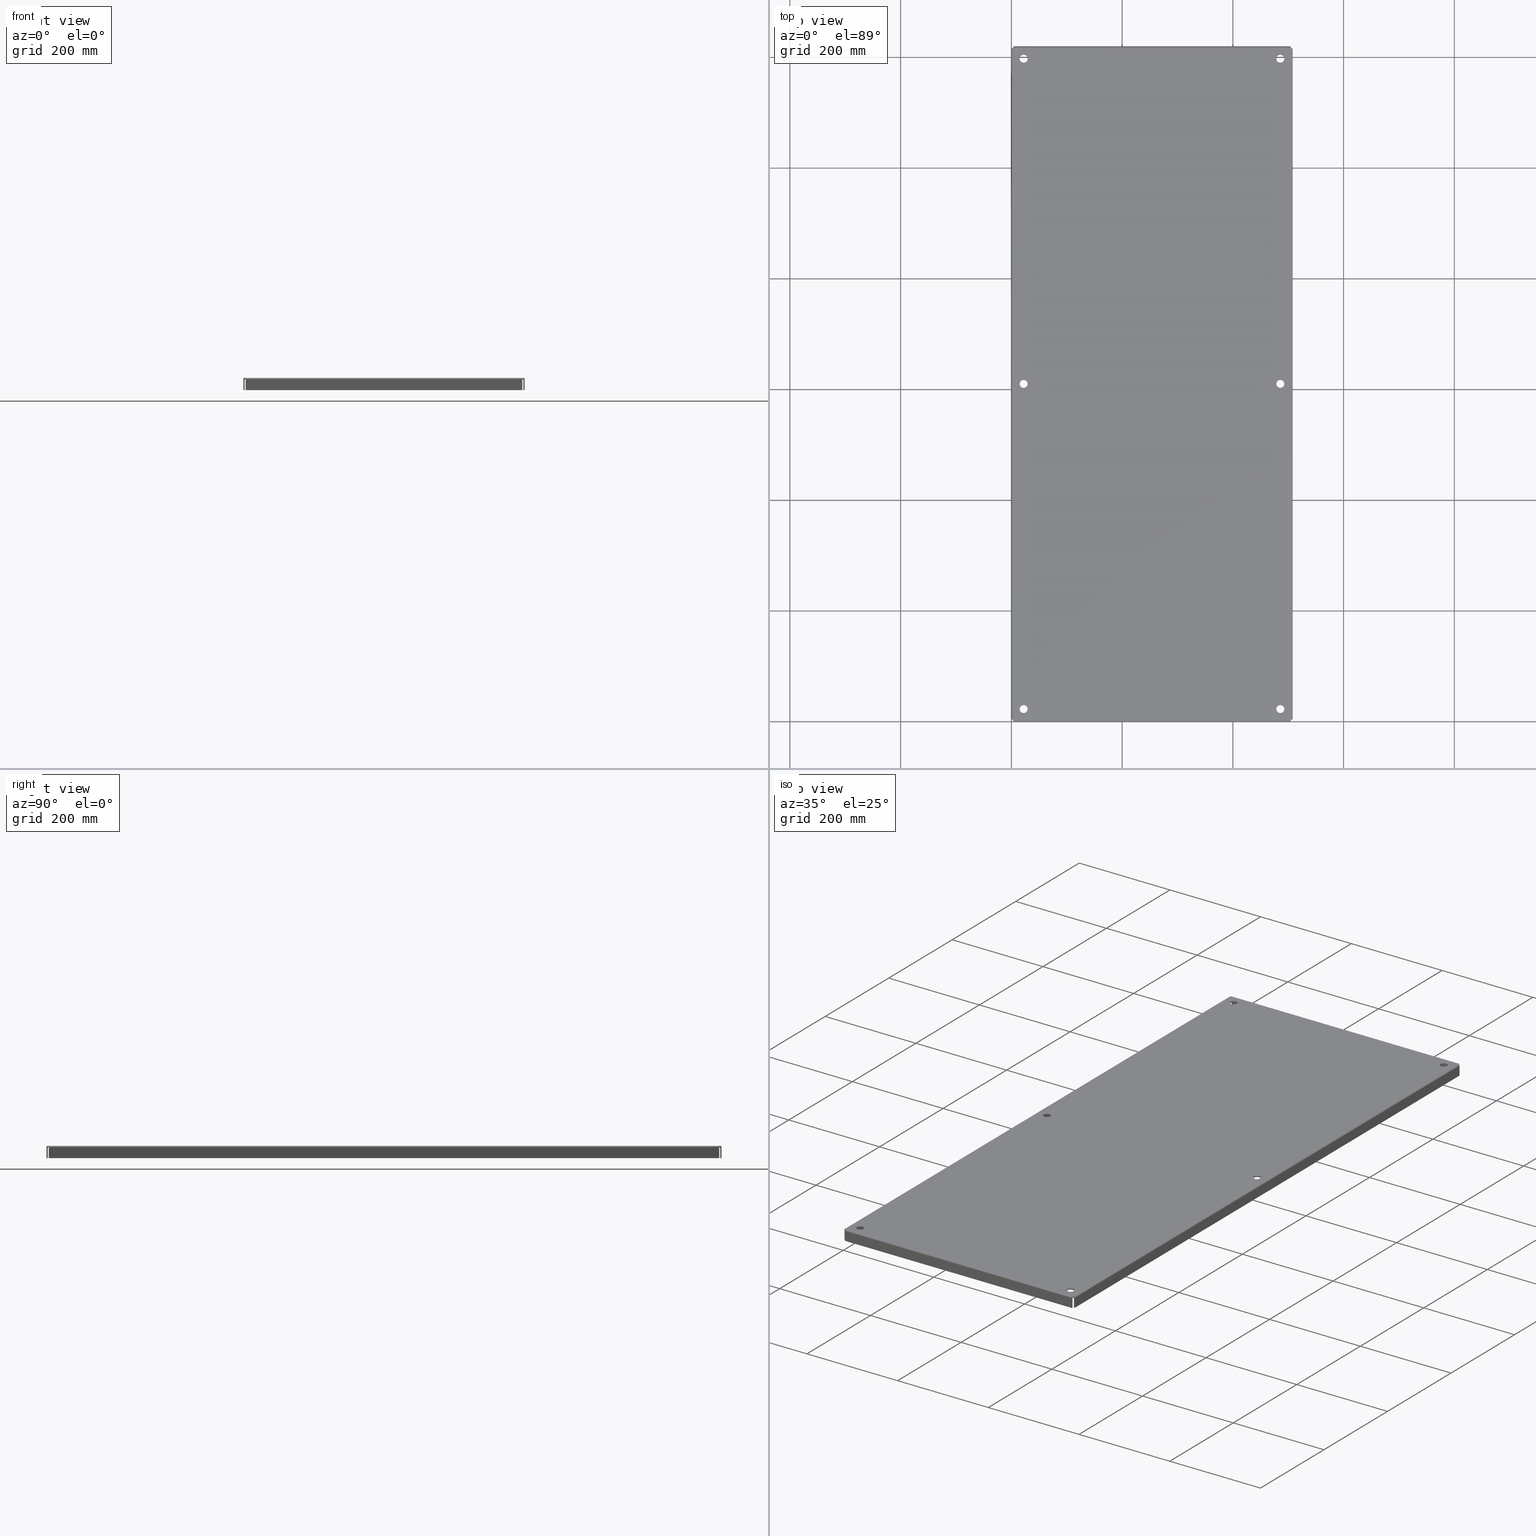
[diagram: canonical four-view strip — front | top / right | iso, engineering-drawing reading convention]
A machine part, canonical four-view strip (front | top / right | iso — engineering-drawing reading convention). The complete STEP part file that produces these views, byte-faithful:
ISO-10303-21;
HEADER;
/****************************************************************
 * Generated by software with PDElib inside                    *
 * PDElib Version v51a, created Wed 07/06/2011                  *
 * ITI Transcendata (http://www.transcendata.com/)              *
 ****************************************************************/
FILE_DESCRIPTION((''),'2;1');
FILE_NAME('C:\\W_Vault\\W-India\\Panels\\WA_F1G & WA_F2G\\WA_P_F_G_DXF STP\\WA60P24F1G.stp','2013-06-17T20:50:08',('ypadmaraja'),(''),'Autodesk Inventor 2012','Autodesk Inventor 2012','');
FILE_SCHEMA(('AUTOMOTIVE_DESIGN { 1 0 10303 214 1 1 1 1 }'));
ENDSEC;
DATA;
#5=APPLICATION_CONTEXT('automotive design');
#6=APPLICATION_PROTOCOL_DEFINITION('International Standard','automotive_design',2001,#5);
#7=PRODUCT_CONTEXT('',#5,'mechanical');
#8=PRODUCT('WA_P_F_G','WA_P_F_G',$,(#7));
#9=PRODUCT_RELATED_PRODUCT_CATEGORY('part',$,(#8));
#10=PRODUCT_DEFINITION_FORMATION('',$,#8);
#11=PRODUCT_DEFINITION_CONTEXT('part definition',#5,'design');
#12=PRODUCT_DEFINITION('',$,#10,#11);
#18=(NAMED_UNIT(*)PLANE_ANGLE_UNIT()SI_UNIT($,.RADIAN.));
#19=DIMENSIONAL_EXPONENTS(0.0,0.0,0.0,0.0,0.0,0.0,0.0);
#20=PLANE_ANGLE_MEASURE_WITH_UNIT(PLANE_ANGLE_MEASURE(0.0174532925),#18);
#24=(CONVERSION_BASED_UNIT('DEGREE',#20)NAMED_UNIT(#19)PLANE_ANGLE_UNIT());
#28=(NAMED_UNIT(*)SI_UNIT($,.STERADIAN.)SOLID_ANGLE_UNIT());
#32=(LENGTH_UNIT()NAMED_UNIT(*)SI_UNIT(.CENTI.,.METRE.));
#33=DIMENSIONAL_EXPONENTS(1.0,0.0,0.0,0.0,0.0,0.0,0.0);
#34=LENGTH_MEASURE_WITH_UNIT(LENGTH_MEASURE(2.54),#32);
#38=(CONVERSION_BASED_UNIT('INCH',#34)LENGTH_UNIT()NAMED_UNIT(#33));
#40=UNCERTAINTY_MEASURE_WITH_UNIT(LENGTH_MEASURE(0.000393700787402),#38,'DISTANCE_ACCURACY_VALUE','');
#42=(GEOMETRIC_REPRESENTATION_CONTEXT(3)GLOBAL_UNCERTAINTY_ASSIGNED_CONTEXT((#40))GLOBAL_UNIT_ASSIGNED_CONTEXT((#24,#28,#38))REPRESENTATION_CONTEXT('None','None'));
#43=AXIS2_PLACEMENT_3D('',#44,#45,#46);
#44=CARTESIAN_POINT('',(0.0,0.0,0.0));
#45=DIRECTION('',(0.0,0.0,1.0));
#46=DIRECTION('',(1.0,0.0,0.0));
#47=SHAPE_REPRESENTATION('',(#43),#42);
#48=PRODUCT_DEFINITION_SHAPE('','',#12);
#49=SHAPE_DEFINITION_REPRESENTATION(#48,#47);
#55=(NAMED_UNIT(*)PLANE_ANGLE_UNIT()SI_UNIT($,.RADIAN.));
#56=DIMENSIONAL_EXPONENTS(0.0,0.0,0.0,0.0,0.0,0.0,0.0);
#57=PLANE_ANGLE_MEASURE_WITH_UNIT(PLANE_ANGLE_MEASURE(0.0174532925),#55);
#61=(CONVERSION_BASED_UNIT('DEGREE',#57)NAMED_UNIT(#56)PLANE_ANGLE_UNIT());
#65=(NAMED_UNIT(*)SI_UNIT($,.STERADIAN.)SOLID_ANGLE_UNIT());
#69=(LENGTH_UNIT()NAMED_UNIT(*)SI_UNIT(.MILLI.,.METRE.));
#71=UNCERTAINTY_MEASURE_WITH_UNIT(LENGTH_MEASURE(0.000001),#69,'DISTANCE_ACCURACY_VALUE','');
#73=(GEOMETRIC_REPRESENTATION_CONTEXT(3)GLOBAL_UNCERTAINTY_ASSIGNED_CONTEXT((#71))GLOBAL_UNIT_ASSIGNED_CONTEXT((#61,#65,#69))REPRESENTATION_CONTEXT('','3D'));
#74=CARTESIAN_POINT('',(19.125,24.000000000000011,0.046875));
#75=DIRECTION('',(0.0,0.0,1.0));
#76=DIRECTION('',(1.0,0.0,0.0));
#77=AXIS2_PLACEMENT_3D('',#74,#75,#76);
#78=CYLINDRICAL_SURFACE('',#77,0.2815);
#79=CARTESIAN_POINT('',(19.406500000000001,24.000000000000011,0.09375));
#80=VERTEX_POINT('',#79);
#81=CARTESIAN_POINT('',(19.125,24.000000000000011,0.09375));
#82=DIRECTION('',(0.0,0.0,-1.0));
#83=DIRECTION('',(1.0,0.0,0.0));
#84=AXIS2_PLACEMENT_3D('',#81,#82,#83);
#85=CIRCLE('',#84,0.2815);
#86=EDGE_CURVE('',#80,#80,#85,.T.);
#87=ORIENTED_EDGE('',*,*,#86,.F.);
#88=EDGE_LOOP('',(#87));
#89=FACE_OUTER_BOUND('',#88,.T.);
#90=CARTESIAN_POINT('',(19.406500000000001,24.000000000000011,0.0));
#91=VERTEX_POINT('',#90);
#92=CARTESIAN_POINT('',(19.125,24.000000000000011,0.0));
#93=DIRECTION('',(0.0,0.0,1.0));
#94=DIRECTION('',(1.0,0.0,0.0));
#95=AXIS2_PLACEMENT_3D('',#92,#93,#94);
#96=CIRCLE('',#95,0.2815);
#97=EDGE_CURVE('',#91,#91,#96,.T.);
#98=ORIENTED_EDGE('',*,*,#97,.F.);
#99=EDGE_LOOP('',(#98));
#100=FACE_BOUND('',#99,.T.);
#101=ADVANCED_FACE('',(#89,#100),#78,.F.);
#102=CARTESIAN_POINT('',(0.874999999999993,24.000000000000004,0.046875));
#103=DIRECTION('',(0.0,0.0,1.0));
#104=DIRECTION('',(1.0,0.0,0.0));
#105=AXIS2_PLACEMENT_3D('',#102,#103,#104);
#106=CYLINDRICAL_SURFACE('',#105,0.2815);
#107=CARTESIAN_POINT('',(1.156499999999993,24.000000000000004,0.09375));
#108=VERTEX_POINT('',#107);
#109=CARTESIAN_POINT('',(0.874999999999993,24.000000000000004,0.09375));
#110=DIRECTION('',(0.0,0.0,-1.0));
#111=DIRECTION('',(1.0,0.0,0.0));
#112=AXIS2_PLACEMENT_3D('',#109,#110,#111);
#113=CIRCLE('',#112,0.2815);
#114=EDGE_CURVE('',#108,#108,#113,.T.);
#115=ORIENTED_EDGE('',*,*,#114,.F.);
#116=EDGE_LOOP('',(#115));
#117=FACE_OUTER_BOUND('',#116,.T.);
#118=CARTESIAN_POINT('',(1.156499999999993,24.000000000000004,0.0));
#119=VERTEX_POINT('',#118);
#120=CARTESIAN_POINT('',(0.874999999999993,24.000000000000004,0.0));
#121=DIRECTION('',(0.0,0.0,1.0));
#122=DIRECTION('',(1.0,0.0,0.0));
#123=AXIS2_PLACEMENT_3D('',#120,#121,#122);
#124=CIRCLE('',#123,0.2815);
#125=EDGE_CURVE('',#119,#119,#124,.T.);
#126=ORIENTED_EDGE('',*,*,#125,.F.);
#127=EDGE_LOOP('',(#126));
#128=FACE_BOUND('',#127,.T.);
#129=ADVANCED_FACE('',(#117,#128),#106,.F.);
#130=CARTESIAN_POINT('',(19.124999999999996,47.125000000000021,0.046875));
#131=DIRECTION('',(0.0,0.0,1.0));
#132=DIRECTION('',(1.0,0.0,0.0));
#133=AXIS2_PLACEMENT_3D('',#130,#131,#132);
#134=CYLINDRICAL_SURFACE('',#133,0.2815);
#135=CARTESIAN_POINT('',(19.406499999999994,47.125000000000021,0.09375));
#136=VERTEX_POINT('',#135);
#137=CARTESIAN_POINT('',(19.124999999999996,47.125000000000021,0.09375));
#138=DIRECTION('',(0.0,0.0,-1.0));
#139=DIRECTION('',(1.0,0.0,0.0));
#140=AXIS2_PLACEMENT_3D('',#137,#138,#139);
#141=CIRCLE('',#140,0.2815);
#142=EDGE_CURVE('',#136,#136,#141,.T.);
#143=ORIENTED_EDGE('',*,*,#142,.F.);
#144=EDGE_LOOP('',(#143));
#145=FACE_OUTER_BOUND('',#144,.T.);
#146=CARTESIAN_POINT('',(19.406499999999994,47.125000000000021,0.0));
#147=VERTEX_POINT('',#146);
#148=CARTESIAN_POINT('',(19.124999999999996,47.125000000000021,0.0));
#149=DIRECTION('',(0.0,0.0,1.0));
#150=DIRECTION('',(1.0,0.0,0.0));
#151=AXIS2_PLACEMENT_3D('',#148,#149,#150);
#152=CIRCLE('',#151,0.2815);
#153=EDGE_CURVE('',#147,#147,#152,.T.);
#154=ORIENTED_EDGE('',*,*,#153,.F.);
#155=EDGE_LOOP('',(#154));
#156=FACE_BOUND('',#155,.T.);
#157=ADVANCED_FACE('',(#145,#156),#134,.F.);
#158=CARTESIAN_POINT('',(0.874999999999986,47.125000000000021,0.046875));
#159=DIRECTION('',(0.0,0.0,1.0));
#160=DIRECTION('',(1.0,0.0,0.0));
#161=AXIS2_PLACEMENT_3D('',#158,#159,#160);
#162=CYLINDRICAL_SURFACE('',#161,0.2815);
#163=CARTESIAN_POINT('',(1.156499999999986,47.125000000000021,0.09375));
#164=VERTEX_POINT('',#163);
#165=CARTESIAN_POINT('',(0.874999999999986,47.125000000000021,0.09375));
#166=DIRECTION('',(0.0,0.0,-1.0));
#167=DIRECTION('',(1.0,0.0,0.0));
#168=AXIS2_PLACEMENT_3D('',#165,#166,#167);
#169=CIRCLE('',#168,0.2815);
#170=EDGE_CURVE('',#164,#164,#169,.T.);
#171=ORIENTED_EDGE('',*,*,#170,.F.);
#172=EDGE_LOOP('',(#171));
#173=FACE_OUTER_BOUND('',#172,.T.);
#174=CARTESIAN_POINT('',(1.156499999999986,47.125000000000021,0.0));
#175=VERTEX_POINT('',#174);
#176=CARTESIAN_POINT('',(0.874999999999986,47.125000000000021,0.0));
#177=DIRECTION('',(0.0,0.0,1.0));
#178=DIRECTION('',(1.0,0.0,0.0));
#179=AXIS2_PLACEMENT_3D('',#176,#177,#178);
#180=CIRCLE('',#179,0.2815);
#181=EDGE_CURVE('',#175,#175,#180,.T.);
#182=ORIENTED_EDGE('',*,*,#181,.F.);
#183=EDGE_LOOP('',(#182));
#184=FACE_BOUND('',#183,.T.);
#185=ADVANCED_FACE('',(#173,#184),#162,.F.);
#186=CARTESIAN_POINT('',(0.874999999999976,0.875,0.046875));
#187=DIRECTION('',(0.0,0.0,1.0));
#188=DIRECTION('',(1.0,0.0,0.0));
#189=AXIS2_PLACEMENT_3D('',#186,#187,#188);
#190=CYLINDRICAL_SURFACE('',#189,0.2815);
#191=CARTESIAN_POINT('',(1.156499999999976,0.875,0.09375));
#192=VERTEX_POINT('',#191);
#193=CARTESIAN_POINT('',(0.874999999999976,0.875,0.09375));
#194=DIRECTION('',(0.0,0.0,-1.0));
#195=DIRECTION('',(1.0,0.0,0.0));
#196=AXIS2_PLACEMENT_3D('',#193,#194,#195);
#197=CIRCLE('',#196,0.2815);
#198=EDGE_CURVE('',#192,#192,#197,.T.);
#199=ORIENTED_EDGE('',*,*,#198,.F.);
#200=EDGE_LOOP('',(#199));
#201=FACE_OUTER_BOUND('',#200,.T.);
#202=CARTESIAN_POINT('',(1.156499999999976,0.875,0.0));
#203=VERTEX_POINT('',#202);
#204=CARTESIAN_POINT('',(0.874999999999976,0.875,0.0));
#205=DIRECTION('',(0.0,0.0,1.0));
#206=DIRECTION('',(1.0,0.0,0.0));
#207=AXIS2_PLACEMENT_3D('',#204,#205,#206);
#208=CIRCLE('',#207,0.2815);
#209=EDGE_CURVE('',#203,#203,#208,.T.);
#210=ORIENTED_EDGE('',*,*,#209,.F.);
#211=EDGE_LOOP('',(#210));
#212=FACE_BOUND('',#211,.T.);
#213=ADVANCED_FACE('',(#201,#212),#190,.F.);
#214=CARTESIAN_POINT('',(19.124999999999996,0.875,0.046875));
#215=DIRECTION('',(0.0,0.0,1.0));
#216=DIRECTION('',(1.0,0.0,0.0));
#217=AXIS2_PLACEMENT_3D('',#214,#215,#216);
#218=CYLINDRICAL_SURFACE('',#217,0.2815);
#219=CARTESIAN_POINT('',(19.406499999999994,0.875,0.09375));
#220=VERTEX_POINT('',#219);
#221=CARTESIAN_POINT('',(19.124999999999996,0.875,0.09375));
#222=DIRECTION('',(0.0,0.0,-1.0));
#223=DIRECTION('',(1.0,0.0,0.0));
#224=AXIS2_PLACEMENT_3D('',#221,#222,#223);
#225=CIRCLE('',#224,0.2815);
#226=EDGE_CURVE('',#220,#220,#225,.T.);
#227=ORIENTED_EDGE('',*,*,#226,.F.);
#228=EDGE_LOOP('',(#227));
#229=FACE_OUTER_BOUND('',#228,.T.);
#230=CARTESIAN_POINT('',(19.406499999999994,0.875,0.0));
#231=VERTEX_POINT('',#230);
#232=CARTESIAN_POINT('',(19.124999999999996,0.875,0.0));
#233=DIRECTION('',(0.0,0.0,1.0));
#234=DIRECTION('',(1.0,0.0,0.0));
#235=AXIS2_PLACEMENT_3D('',#232,#233,#234);
#236=CIRCLE('',#235,0.2815);
#237=EDGE_CURVE('',#231,#231,#236,.T.);
#238=ORIENTED_EDGE('',*,*,#237,.F.);
#239=EDGE_LOOP('',(#238));
#240=FACE_BOUND('',#239,.T.);
#241=ADVANCED_FACE('',(#229,#240),#218,.F.);
#242=CARTESIAN_POINT('',(19.890649999999994,47.839958739263764,-0.0156));
#243=DIRECTION('',(-1.165588E-016,1.0,0.0));
#244=DIRECTION('',(1.0,0.0,0.0));
#245=AXIS2_PLACEMENT_3D('',#242,#243,#244);
#246=CYLINDRICAL_SURFACE('',#245,0.10935);
#247=CARTESIAN_POINT('',(19.999999999999996,47.839958739263764,-0.015599999999999));
#248=VERTEX_POINT('',#247);
#249=CARTESIAN_POINT('',(20.000000000000004,0.160041260736241,-0.015599999999999));
#250=VERTEX_POINT('',#249);
#251=CARTESIAN_POINT('',(19.999999999999996,47.839958739263764,-0.015599999999999));
#252=DIRECTION('',(0.0,-1.0,0.0));
#253=VECTOR('',#252,47.679917478527528);
#254=LINE('',#251,#253);
#255=EDGE_CURVE('',#248,#250,#254,.T.);
#256=ORIENTED_EDGE('',*,*,#255,.F.);
#257=CARTESIAN_POINT('',(19.890650000000001,47.890650000000001,0.09375));
#258=VERTEX_POINT('',#257);
#259=CARTESIAN_POINT('',(19.89064999999999,47.890650000000001,0.09375));
#260=CARTESIAN_POINT('',(19.923367443492374,47.880994521764528,0.093750000000002));
#261=CARTESIAN_POINT('',(19.955718298039553,47.871339043529041,0.078044024856673));
#262=CARTESIAN_POINT('',(19.976119622984278,47.861683565293568,0.052594048283447));
#263=CARTESIAN_POINT('',(19.991420616692828,47.854441956616967,0.033506565853527));
#264=CARTESIAN_POINT('',(19.999999999999996,47.847200347940372,0.00893808261929));
#265=CARTESIAN_POINT('',(19.999999999999996,47.839958739263764,-0.015599999999999));
#266=B_SPLINE_CURVE_WITH_KNOTS('',3,(#259,#260,#261,#262,#263,#264,#265),.UNSPECIFIED.,.F.,.U.,(4,3,4),(0.0,0.897597901025662,1.5707963267949),.UNSPECIFIED.);
#267=EDGE_CURVE('',#258,#248,#266,.T.);
#268=ORIENTED_EDGE('',*,*,#267,.F.);
#269=CARTESIAN_POINT('',(19.890650000000001,0.10935,0.09375));
#270=VERTEX_POINT('',#269);
#271=CARTESIAN_POINT('',(19.890650000000001,0.109350000000001,0.09375));
#272=DIRECTION('',(0.0,1.0,0.0));
#273=VECTOR('',#272,47.781300000000002);
#274=LINE('',#271,#273);
#275=EDGE_CURVE('',#270,#258,#274,.T.);
#276=ORIENTED_EDGE('',*,*,#275,.F.);
#277=CARTESIAN_POINT('',(20.0,0.16004126073624,-0.015599999999999));
#278=CARTESIAN_POINT('',(20.0,0.150385782500766,0.017117443492386));
#279=CARTESIAN_POINT('',(19.984294173736597,0.140730304265291,0.049468476674486));
#280=CARTESIAN_POINT('',(19.958844175894814,0.131074826029817,0.069869776099937));
#281=CARTESIAN_POINT('',(19.939756677513468,0.123833217353212,0.085170750669026));
#282=CARTESIAN_POINT('',(19.915188082619288,0.116591608676606,0.09375));
#283=CARTESIAN_POINT('',(19.890650000000001,0.10935,0.09375));
#284=B_SPLINE_CURVE_WITH_KNOTS('',3,(#277,#278,#279,#280,#281,#282,#283),.UNSPECIFIED.,.F.,.U.,(4,3,4),(0.0,0.897597901025664,1.570796326794901),.UNSPECIFIED.);
#285=EDGE_CURVE('',#250,#270,#284,.T.);
#286=ORIENTED_EDGE('',*,*,#285,.F.);
#287=EDGE_LOOP('',(#256,#268,#276,#286));
#288=FACE_OUTER_BOUND('',#287,.T.);
#289=ADVANCED_FACE('',(#288),#246,.T.);
#290=CARTESIAN_POINT('',(19.90625,24.0,-0.362047006524195));
#291=DIRECTION('',(1.0,0.0,0.0));
#292=DIRECTION('',(0.0,0.0,-1.0));
#293=AXIS2_PLACEMENT_3D('',#290,#291,#292);
#294=PLANE('',#293);
#295=CARTESIAN_POINT('',(19.906250000000004,0.160041260736241,-0.015599999999999));
#296=VERTEX_POINT('',#295);
#297=CARTESIAN_POINT('',(19.90625,47.839958739263764,-0.015599999999999));
#298=VERTEX_POINT('',#297);
#299=CARTESIAN_POINT('',(19.906250000000004,0.160041260736239,-0.015599999999999));
#300=DIRECTION('',(0.0,1.0,0.0));
#301=VECTOR('',#300,47.679917478527528);
#302=LINE('',#299,#301);
#303=EDGE_CURVE('',#296,#298,#302,.T.);
#304=ORIENTED_EDGE('',*,*,#303,.T.);
#305=CARTESIAN_POINT('',(19.90625,47.83995873926375,-0.781249999999997));
#306=VERTEX_POINT('',#305);
#307=CARTESIAN_POINT('',(19.906249999999996,47.83995873926375,-0.015599999999999));
#308=DIRECTION('',(0.0,0.0,-1.0));
#309=VECTOR('',#308,0.765649999999999);
#310=LINE('',#307,#309);
#311=EDGE_CURVE('',#298,#306,#310,.T.);
#312=ORIENTED_EDGE('',*,*,#311,.T.);
#313=CARTESIAN_POINT('',(19.906250000000007,0.160041260736244,-0.781249999999997));
#314=VERTEX_POINT('',#313);
#315=CARTESIAN_POINT('',(19.90625,47.83995873926375,-0.781249999999997));
#316=DIRECTION('',(0.0,-1.0,0.0));
#317=VECTOR('',#316,47.679917478527507);
#318=LINE('',#315,#317);
#319=EDGE_CURVE('',#306,#314,#318,.T.);
#320=ORIENTED_EDGE('',*,*,#319,.T.);
#321=CARTESIAN_POINT('',(19.90625,0.160041260736244,-0.015599999999999));
#322=DIRECTION('',(0.0,0.0,-1.0));
#323=VECTOR('',#322,0.765649999999999);
#324=LINE('',#321,#323);
#325=EDGE_CURVE('',#296,#314,#324,.T.);
#326=ORIENTED_EDGE('',*,*,#325,.F.);
#327=EDGE_LOOP('',(#304,#312,#320,#326));
#328=FACE_OUTER_BOUND('',#327,.T.);
#329=ADVANCED_FACE('',(#328),#294,.F.);
#330=CARTESIAN_POINT('',(19.906250000000007,0.160041260736244,-0.781249999999997));
#331=DIRECTION('',(0.0,-1.0,0.0));
#332=DIRECTION('',(-1.0,0.0,0.0));
#333=AXIS2_PLACEMENT_3D('',#330,#331,#332);
#334=PLANE('',#333);
#335=CARTESIAN_POINT('',(20.000000000000007,0.160041260736244,-0.781249999999997));
#336=VERTEX_POINT('',#335);
#337=CARTESIAN_POINT('',(20.000000000000007,0.160041260736244,-0.781249999999997));
#338=DIRECTION('',(0.0,0.0,1.0));
#339=VECTOR('',#338,0.765649999999999);
#340=LINE('',#337,#339);
#341=EDGE_CURVE('',#336,#250,#340,.T.);
#342=ORIENTED_EDGE('',*,*,#341,.T.);
#343=CARTESIAN_POINT('',(19.906250000000004,0.160041260736241,-0.015599999999999));
#344=DIRECTION('',(1.0,0.0,0.0));
#345=VECTOR('',#344,0.09375);
#346=LINE('',#343,#345);
#347=EDGE_CURVE('',#296,#250,#346,.T.);
#348=ORIENTED_EDGE('',*,*,#347,.F.);
#349=ORIENTED_EDGE('',*,*,#325,.T.);
#350=CARTESIAN_POINT('',(19.906250000000007,0.160041260736244,-0.781249999999997));
#351=DIRECTION('',(1.0,0.0,0.0));
#352=VECTOR('',#351,0.09375);
#353=LINE('',#350,#352);
#354=EDGE_CURVE('',#314,#336,#353,.T.);
#355=ORIENTED_EDGE('',*,*,#354,.T.);
#356=EDGE_LOOP('',(#342,#348,#349,#355));
#357=FACE_OUTER_BOUND('',#356,.T.);
#358=ADVANCED_FACE('',(#357),#334,.T.);
#359=CARTESIAN_POINT('',(19.890650000000001,0.10935,0.093750000000001));
#360=CARTESIAN_POINT('',(19.890650000000001,0.10935,0.062500000000001));
#361=CARTESIAN_POINT('',(19.890650000000001,0.10935,0.03125));
#362=CARTESIAN_POINT('',(19.890650000000001,0.10935,-8.195544E-018));
#363=CARTESIAN_POINT('',(19.915188082619288,0.116591608676606,0.093750000000001));
#364=CARTESIAN_POINT('',(19.908175599017525,0.116591608676606,0.062500000000001));
#365=CARTESIAN_POINT('',(19.901163115415763,0.116591608676606,0.03125));
#366=CARTESIAN_POINT('',(19.894150631814,0.116591608676606,-8.195544E-018));
#367=CARTESIAN_POINT('',(19.972514804039047,0.133488695588686,0.073731751561061));
#368=CARTESIAN_POINT('',(19.949119512532686,0.133488695588686,0.04820255872811));
#369=CARTESIAN_POINT('',(19.925724221026329,0.133488695588686,0.022673365895159));
#370=CARTESIAN_POINT('',(19.902328929519967,0.133488695588686,-0.002855826937791));
#371=CARTESIAN_POINT('',(20.0,0.150385782500766,0.017117443492386));
#372=CARTESIAN_POINT('',(19.96875,0.150385782500766,0.007767465356702));
#373=CARTESIAN_POINT('',(19.9375,0.150385782500766,-0.001582512778982));
#374=CARTESIAN_POINT('',(19.90625,0.150385782500766,-0.010932490914667));
#375=CARTESIAN_POINT('',(20.0,0.16004126073624,-0.015599999999999));
#376=CARTESIAN_POINT('',(19.96875,0.16004126073624,-0.0156));
#377=CARTESIAN_POINT('',(19.9375,0.16004126073624,-0.0156));
#378=CARTESIAN_POINT('',(19.90625,0.16004126073624,-0.0156));
#379=B_SPLINE_SURFACE_WITH_KNOTS('',3,3,((#359,#363,#367,#371,#375),(#360,#364,#368,#372,#376),(#361,#365,#369,#373,#377),(#362,#366,#370,#374,#378)),.UNSPECIFIED.,.F.,.F.,.F.,(4,4),(4,1,4),(-0.238125,3.347284E-015),(-0.222887265970847,-0.127364151983341,0.0),.UNSPECIFIED.);
#380=ORIENTED_EDGE('',*,*,#285,.T.);
#381=CARTESIAN_POINT('',(19.890650000000001,0.10935,0.016671058870931));
#382=VERTEX_POINT('',#381);
#383=CARTESIAN_POINT('',(19.890650000000001,0.10935,0.016671058870931));
#384=DIRECTION('',(0.0,0.0,1.0));
#385=VECTOR('',#384,0.077078941129069);
#386=LINE('',#383,#385);
#387=EDGE_CURVE('',#382,#270,#386,.T.);
#388=ORIENTED_EDGE('',*,*,#387,.F.);
#389=CARTESIAN_POINT('',(19.890650000000001,0.10935,0.0));
#390=VERTEX_POINT('',#389);
#391=CARTESIAN_POINT('',(19.890650000000001,0.10935,0.0));
#392=DIRECTION('',(0.0,0.0,1.0));
#393=VECTOR('',#392,0.016671058870931);
#394=LINE('',#391,#393);
#395=EDGE_CURVE('',#390,#382,#394,.T.);
#396=ORIENTED_EDGE('',*,*,#395,.F.);
#397=CARTESIAN_POINT('',(19.890650000000001,0.10935,0.0));
#398=CARTESIAN_POINT('',(19.894150631814,0.116591608676606,0.0));
#399=CARTESIAN_POINT('',(19.897655616545126,0.123833217353211,-0.001223925830482));
#400=CARTESIAN_POINT('',(19.900378661581698,0.131074826029817,-0.003406780913041));
#401=CARTESIAN_POINT('',(19.904009388297123,0.140730304265291,-0.006317254356452));
#402=CARTESIAN_POINT('',(19.90625,0.150385782500766,-0.010932490914667));
#403=CARTESIAN_POINT('',(19.90625,0.16004126073624,-0.0156));
#404=B_SPLINE_CURVE_WITH_KNOTS('',3,(#397,#398,#399,#400,#401,#402,#403),.UNSPECIFIED.,.F.,.U.,(4,3,4),(0.0,0.673198425769243,1.570796326794901),.UNSPECIFIED.);
#405=EDGE_CURVE('',#390,#296,#404,.T.);
#406=ORIENTED_EDGE('',*,*,#405,.T.);
#407=ORIENTED_EDGE('',*,*,#347,.T.);
#408=EDGE_LOOP('',(#380,#388,#396,#406,#407));
#409=FACE_OUTER_BOUND('',#408,.T.);
#410=ADVANCED_FACE('',(#409),#379,.T.);
#411=CARTESIAN_POINT('',(19.999999999999996,47.839958739263764,-0.015599999999999));
#412=CARTESIAN_POINT('',(19.968749999999996,47.839958739263764,-0.0156));
#413=CARTESIAN_POINT('',(19.937499999999996,47.839958739263764,-0.0156));
#414=CARTESIAN_POINT('',(19.906249999999996,47.839958739263764,-0.0156));
#415=CARTESIAN_POINT('',(19.999999999999996,47.847200347940372,0.00893808261929));
#416=CARTESIAN_POINT('',(19.968749999999996,47.847200347940372,0.001925599017527));
#417=CARTESIAN_POINT('',(19.937499999999996,47.847200347940372,-0.005086884584237));
#418=CARTESIAN_POINT('',(19.906249999999996,47.847200347940372,-0.012099368186));
#419=CARTESIAN_POINT('',(19.979981438949935,47.86409743485244,0.066264543499177));
#420=CARTESIAN_POINT('',(19.954452335454871,47.86409743485244,0.042869326449801));
#421=CARTESIAN_POINT('',(19.928923231959796,47.86409743485244,0.019474109400425));
#422=CARTESIAN_POINT('',(19.903394128464733,47.86409743485244,-0.003921107648952));
#423=CARTESIAN_POINT('',(19.923367443492374,47.880994521764528,0.093750000000003));
#424=CARTESIAN_POINT('',(19.914017465356693,47.880994521764528,0.062500000000002));
#425=CARTESIAN_POINT('',(19.904667487221008,47.880994521764528,0.031250000000001));
#426=CARTESIAN_POINT('',(19.895317509085331,47.880994521764528,2.680490E-016));
#427=CARTESIAN_POINT('',(19.89064999999999,47.890650000000001,0.093750000000001));
#428=CARTESIAN_POINT('',(19.89064999999999,47.890650000000001,0.062500000000001));
#429=CARTESIAN_POINT('',(19.89064999999999,47.890650000000001,0.03125));
#430=CARTESIAN_POINT('',(19.890649999999994,47.890650000000001,2.731848E-018));
#431=B_SPLINE_SURFACE_WITH_KNOTS('',3,3,((#411,#415,#419,#423,#427),(#412,#416,#420,#424,#428),(#413,#417,#421,#425,#429),(#414,#418,#422,#426,#430)),.UNSPECIFIED.,.F.,.F.,.F.,(4,4),(4,1,4),(-0.238125000000004,0.0),(-0.22288726597084,-0.127364151983337,0.0),.UNSPECIFIED.);
#432=ORIENTED_EDGE('',*,*,#267,.T.);
#433=CARTESIAN_POINT('',(19.90625,47.839958739263764,-0.015599999999999));
#434=DIRECTION('',(1.0,0.0,0.0));
#435=VECTOR('',#434,0.09375);
#436=LINE('',#433,#435);
#437=EDGE_CURVE('',#298,#248,#436,.T.);
#438=ORIENTED_EDGE('',*,*,#437,.F.);
#439=CARTESIAN_POINT('',(19.890650000000001,47.890650000000001,0.0));
#440=VERTEX_POINT('',#439);
#441=CARTESIAN_POINT('',(19.890649999999994,47.890650000000001,-1.092739E-017));
#442=CARTESIAN_POINT('',(19.895317509085331,47.880994521764528,1.966931E-016));
#443=CARTESIAN_POINT('',(19.899932720159274,47.871339043529041,-0.002240632942258));
#444=CARTESIAN_POINT('',(19.902843197243296,47.861683565293568,-0.005871356623486));
#445=CARTESIAN_POINT('',(19.905026055056315,47.854441956616967,-0.008594399384408));
#446=CARTESIAN_POINT('',(19.906249999999996,47.847200347940372,-0.012099368186));
#447=CARTESIAN_POINT('',(19.906249999999996,47.839958739263764,-0.0156));
#448=B_SPLINE_CURVE_WITH_KNOTS('',3,(#441,#442,#443,#444,#445,#446,#447),.UNSPECIFIED.,.F.,.U.,(4,3,4),(0.0,0.897597901025652,1.5707963267949),.UNSPECIFIED.);
#449=EDGE_CURVE('',#440,#298,#448,.T.);
#450=ORIENTED_EDGE('',*,*,#449,.F.);
#451=CARTESIAN_POINT('',(19.89064999999999,47.890650000000001,0.016671058870935));
#452=VERTEX_POINT('',#451);
#453=CARTESIAN_POINT('',(19.890650000000001,47.890650000000001,0.0));
#454=DIRECTION('',(0.0,0.0,1.0));
#455=VECTOR('',#454,0.016671058870935);
#456=LINE('',#453,#455);
#457=EDGE_CURVE('',#440,#452,#456,.T.);
#458=ORIENTED_EDGE('',*,*,#457,.T.);
#459=CARTESIAN_POINT('',(19.890650000000001,47.890650000000001,0.016671058870935));
#460=DIRECTION('',(0.0,0.0,1.0));
#461=VECTOR('',#460,0.077078941129065);
#462=LINE('',#459,#461);
#463=EDGE_CURVE('',#452,#258,#462,.T.);
#464=ORIENTED_EDGE('',*,*,#463,.T.);
#465=EDGE_LOOP('',(#432,#438,#450,#458,#464));
#466=FACE_OUTER_BOUND('',#465,.T.);
#467=ADVANCED_FACE('',(#466),#431,.T.);
#468=CARTESIAN_POINT('',(19.90625,47.839958739263764,-0.015599999999999));
#469=DIRECTION('',(0.0,1.0,0.0));
#470=DIRECTION('',(1.0,0.0,0.0));
#471=AXIS2_PLACEMENT_3D('',#468,#469,#470);
#472=PLANE('',#471);
#473=CARTESIAN_POINT('',(20.0,47.83995873926375,-0.781249999999997));
#474=VERTEX_POINT('',#473);
#475=CARTESIAN_POINT('',(19.999999999999996,47.83995873926375,-0.015599999999999));
#476=DIRECTION('',(0.0,0.0,-1.0));
#477=VECTOR('',#476,0.765649999999999);
#478=LINE('',#475,#477);
#479=EDGE_CURVE('',#248,#474,#478,.T.);
#480=ORIENTED_EDGE('',*,*,#479,.T.);
#481=CARTESIAN_POINT('',(19.90625,47.83995873926375,-0.781249999999997));
#482=DIRECTION('',(1.0,0.0,0.0));
#483=VECTOR('',#482,0.09375);
#484=LINE('',#481,#483);
#485=EDGE_CURVE('',#306,#474,#484,.T.);
#486=ORIENTED_EDGE('',*,*,#485,.F.);
#487=ORIENTED_EDGE('',*,*,#311,.F.);
#488=ORIENTED_EDGE('',*,*,#437,.T.);
#489=EDGE_LOOP('',(#480,#486,#487,#488));
#490=FACE_OUTER_BOUND('',#489,.T.);
#491=ADVANCED_FACE('',(#490),#472,.T.);
#492=CARTESIAN_POINT('',(19.90625,47.83995873926375,-0.781249999999997));
#493=DIRECTION('',(0.0,0.0,-1.0));
#494=DIRECTION('',(-1.0,0.0,0.0));
#495=AXIS2_PLACEMENT_3D('',#492,#493,#494);
#496=PLANE('',#495);
#497=CARTESIAN_POINT('',(20.0,47.83995873926375,-0.781249999999997));
#498=DIRECTION('',(0.0,-1.0,0.0));
#499=VECTOR('',#498,47.679917478527507);
#500=LINE('',#497,#499);
#501=EDGE_CURVE('',#474,#336,#500,.T.);
#502=ORIENTED_EDGE('',*,*,#501,.T.);
#503=ORIENTED_EDGE('',*,*,#354,.F.);
#504=ORIENTED_EDGE('',*,*,#319,.F.);
#505=ORIENTED_EDGE('',*,*,#485,.T.);
#506=EDGE_LOOP('',(#502,#503,#504,#505));
#507=FACE_OUTER_BOUND('',#506,.T.);
#508=ADVANCED_FACE('',(#507),#496,.T.);
#509=CARTESIAN_POINT('',(20.000000000000004,24.0,-0.362047006524195));
#510=DIRECTION('',(1.0,0.0,0.0));
#511=DIRECTION('',(0.0,0.0,-1.0));
#512=AXIS2_PLACEMENT_3D('',#509,#510,#511);
#513=PLANE('',#512);
#514=ORIENTED_EDGE('',*,*,#255,.T.);
#515=ORIENTED_EDGE('',*,*,#341,.F.);
#516=ORIENTED_EDGE('',*,*,#501,.F.);
#517=ORIENTED_EDGE('',*,*,#479,.F.);
#518=EDGE_LOOP('',(#514,#515,#516,#517));
#519=FACE_OUTER_BOUND('',#518,.T.);
#520=ADVANCED_FACE('',(#519),#513,.T.);
#521=CARTESIAN_POINT('',(19.890650000000001,0.16004126073624,-0.0156));
#522=DIRECTION('',(-1.165588E-016,1.0,0.0));
#523=DIRECTION('',(1.0,0.0,0.0));
#524=AXIS2_PLACEMENT_3D('',#521,#522,#523);
#525=CYLINDRICAL_SURFACE('',#524,0.015600000000001);
#526=ORIENTED_EDGE('',*,*,#303,.F.);
#527=ORIENTED_EDGE('',*,*,#405,.F.);
#528=CARTESIAN_POINT('',(19.890649999999997,47.890650000000001,0.0));
#529=DIRECTION('',(0.0,-1.0,0.0));
#530=VECTOR('',#529,47.781300000000002);
#531=LINE('',#528,#530);
#532=EDGE_CURVE('',#440,#390,#531,.T.);
#533=ORIENTED_EDGE('',*,*,#532,.F.);
#534=ORIENTED_EDGE('',*,*,#449,.T.);
#535=EDGE_LOOP('',(#526,#527,#533,#534));
#536=FACE_OUTER_BOUND('',#535,.T.);
#537=ADVANCED_FACE('',(#536),#525,.F.);
#538=CARTESIAN_POINT('',(0.160041260736223,47.890650000000008,-0.0156));
#539=DIRECTION('',(-1.0,2.797412E-016,0.0));
#540=DIRECTION('',(0.0,1.0,0.0));
#541=AXIS2_PLACEMENT_3D('',#538,#539,#540);
#542=CYLINDRICAL_SURFACE('',#541,0.109350000000011);
#543=CARTESIAN_POINT('',(0.160041260736223,48.000000000000021,-0.01559999999999));
#544=VERTEX_POINT('',#543);
#545=CARTESIAN_POINT('',(19.839958739263761,48.0,-0.015599999999979));
#546=VERTEX_POINT('',#545);
#547=CARTESIAN_POINT('',(0.160041260736223,48.000000000000014,-0.015599999999985));
#548=DIRECTION('',(1.0,0.0,0.0));
#549=VECTOR('',#548,19.679917478527535);
#550=LINE('',#547,#549);
#551=EDGE_CURVE('',#544,#546,#550,.T.);
#552=ORIENTED_EDGE('',*,*,#551,.F.);
#553=CARTESIAN_POINT('',(0.109349999999985,47.890650000000008,0.09375));
#554=VERTEX_POINT('',#553);
#555=CARTESIAN_POINT('',(0.10934999999998,47.890650000000008,0.09375));
#556=CARTESIAN_POINT('',(0.116591608676588,47.915188082619302,0.09375));
#557=CARTESIAN_POINT('',(0.123833217353193,47.939756585219321,0.085170639929051));
#558=CARTESIAN_POINT('',(0.1310748260298,47.958844070415786,0.069869649539967));
#559=CARTESIAN_POINT('',(0.140730304265275,47.984294050677732,0.04946832902119));
#560=CARTESIAN_POINT('',(0.15038578250075,48.000000000000014,0.017117443492396));
#561=CARTESIAN_POINT('',(0.160041260736224,48.000000000000014,-0.015599999999987));
#562=B_SPLINE_CURVE_WITH_KNOTS('',3,(#555,#556,#557,#558,#559,#560,#561),.UNSPECIFIED.,.F.,.U.,(4,3,4),(0.0,0.673198425769241,1.570796326794839),.UNSPECIFIED.);
#563=EDGE_CURVE('',#554,#544,#562,.T.);
#564=ORIENTED_EDGE('',*,*,#563,.F.);
#565=CARTESIAN_POINT('',(19.890650000000001,47.890650000000008,0.09375));
#566=DIRECTION('',(-1.0,0.0,0.0));
#567=VECTOR('',#566,19.781300000000016);
#568=LINE('',#565,#567);
#569=EDGE_CURVE('',#258,#554,#568,.T.);
#570=ORIENTED_EDGE('',*,*,#569,.F.);
#571=CARTESIAN_POINT('',(19.839958739263761,48.0,-0.015599999999968));
#572=CARTESIAN_POINT('',(19.847200347940365,47.999999999999993,0.008938082619311));
#573=CARTESIAN_POINT('',(19.85444195661697,47.991420616692821,0.033506565853538));
#574=CARTESIAN_POINT('',(19.861683565293578,47.976119622984285,0.052594048283448));
#575=CARTESIAN_POINT('',(19.871339043529051,47.955718298039564,0.078044024856662));
#576=CARTESIAN_POINT('',(19.880994521764531,47.923367443492403,0.093749999999981));
#577=CARTESIAN_POINT('',(19.890650000000004,47.890650000000029,0.093749999999989));
#578=B_SPLINE_CURVE_WITH_KNOTS('',3,(#571,#572,#573,#574,#575,#576,#577),.UNSPECIFIED.,.F.,.U.,(4,3,4),(0.0,0.673198425769059,1.570796326794471),.UNSPECIFIED.);
#579=EDGE_CURVE('',#546,#258,#578,.T.);
#580=ORIENTED_EDGE('',*,*,#579,.F.);
#581=EDGE_LOOP('',(#552,#564,#570,#580));
#582=FACE_OUTER_BOUND('',#581,.T.);
#583=ADVANCED_FACE('',(#582),#542,.T.);
#584=CARTESIAN_POINT('',(9.999999999999989,47.906250000000036,-0.361280030479221));
#585=DIRECTION('',(0.0,1.0,0.0));
#586=DIRECTION('',(1.0,0.0,0.0));
#587=AXIS2_PLACEMENT_3D('',#584,#585,#586);
#588=PLANE('',#587);
#589=CARTESIAN_POINT('',(19.839958739263761,47.90625,-0.015599999999985));
#590=VERTEX_POINT('',#589);
#591=CARTESIAN_POINT('',(0.160041260736223,47.906250000000028,-0.015599999999996));
#592=VERTEX_POINT('',#591);
#593=CARTESIAN_POINT('',(19.839958739263757,47.90625,-0.015599999999996));
#594=DIRECTION('',(-1.0,0.0,0.0));
#595=VECTOR('',#594,19.679917478527535);
#596=LINE('',#593,#595);
#597=EDGE_CURVE('',#590,#592,#596,.T.);
#598=ORIENTED_EDGE('',*,*,#597,.T.);
#599=CARTESIAN_POINT('',(0.160041260736226,47.906250000000071,-0.78125));
#600=VERTEX_POINT('',#599);
#601=CARTESIAN_POINT('',(0.160041260736226,47.906250000000021,-0.015600000000001));
#602=DIRECTION('',(0.0,0.0,-1.0));
#603=VECTOR('',#602,0.765649999999999);
#604=LINE('',#601,#603);
#605=EDGE_CURVE('',#592,#600,#604,.T.);
#606=ORIENTED_EDGE('',*,*,#605,.T.);
#607=CARTESIAN_POINT('',(19.839958739263754,47.90625000000005,-0.781249999999983));
#608=VERTEX_POINT('',#607);
#609=CARTESIAN_POINT('',(0.160041260736226,47.906250000000071,-0.78125));
#610=DIRECTION('',(1.0,0.0,0.0));
#611=VECTOR('',#610,19.679917478527528);
#612=LINE('',#609,#611);
#613=EDGE_CURVE('',#600,#608,#612,.T.);
#614=ORIENTED_EDGE('',*,*,#613,.T.);
#615=CARTESIAN_POINT('',(19.839958739263754,47.906250000000007,-0.015599999999985));
#616=DIRECTION('',(0.0,0.0,-1.0));
#617=VECTOR('',#616,0.765649999999999);
#618=LINE('',#615,#617);
#619=EDGE_CURVE('',#590,#608,#618,.T.);
#620=ORIENTED_EDGE('',*,*,#619,.F.);
#621=EDGE_LOOP('',(#598,#606,#614,#620));
#622=FACE_OUTER_BOUND('',#621,.T.);
#623=ADVANCED_FACE('',(#622),#588,.F.);
#624=CARTESIAN_POINT('',(19.839958739263754,47.90625000000005,-0.781249999999983));
#625=DIRECTION('',(1.0,0.0,0.0));
#626=DIRECTION('',(0.0,-1.0,0.0));
#627=AXIS2_PLACEMENT_3D('',#624,#625,#626);
#628=PLANE('',#627);
#629=CARTESIAN_POINT('',(19.839958739263754,48.000000000000057,-0.781249999999978));
#630=VERTEX_POINT('',#629);
#631=CARTESIAN_POINT('',(19.839958739263754,48.00000000000005,-0.781249999999978));
#632=DIRECTION('',(0.0,0.0,1.0));
#633=VECTOR('',#632,0.765649999999999);
#634=LINE('',#631,#633);
#635=EDGE_CURVE('',#630,#546,#634,.T.);
#636=ORIENTED_EDGE('',*,*,#635,.T.);
#637=CARTESIAN_POINT('',(19.839958739263761,47.90625,-0.015599999999985));
#638=DIRECTION('',(0.0,1.0,0.0));
#639=VECTOR('',#638,0.09375);
#640=LINE('',#637,#639);
#641=EDGE_CURVE('',#590,#546,#640,.T.);
#642=ORIENTED_EDGE('',*,*,#641,.F.);
#643=ORIENTED_EDGE('',*,*,#619,.T.);
#644=CARTESIAN_POINT('',(19.839958739263754,47.90625000000005,-0.781249999999983));
#645=DIRECTION('',(0.0,1.0,0.0));
#646=VECTOR('',#645,0.093750000000007);
#647=LINE('',#644,#646);
#648=EDGE_CURVE('',#608,#630,#647,.T.);
#649=ORIENTED_EDGE('',*,*,#648,.T.);
#650=EDGE_LOOP('',(#636,#642,#643,#649));
#651=FACE_OUTER_BOUND('',#650,.T.);
#652=ADVANCED_FACE('',(#651),#628,.T.);
#653=CARTESIAN_POINT('',(19.890650000000004,47.890650000000029,0.09375));
#654=CARTESIAN_POINT('',(19.890650000000004,47.890650000000029,0.062499999999997));
#655=CARTESIAN_POINT('',(19.890650000000004,47.890650000000015,0.031249999999994));
#656=CARTESIAN_POINT('',(19.890650000000004,47.890650000000008,-8.695472E-015));
#657=CARTESIAN_POINT('',(19.880994521764531,47.92336744349241,0.093749999999993));
#658=CARTESIAN_POINT('',(19.880994521764531,47.914017465356721,0.062499999999992));
#659=CARTESIAN_POINT('',(19.880994521764531,47.904667487221026,0.031249999999991));
#660=CARTESIAN_POINT('',(19.880994521764531,47.895317509085338,-9.756741E-015));
#661=CARTESIAN_POINT('',(19.86409743485244,47.979981438949935,0.066264543499182));
#662=CARTESIAN_POINT('',(19.86409743485244,47.954452335454867,0.042869326449802));
#663=CARTESIAN_POINT('',(19.86409743485244,47.928923231959786,0.019474109400422));
#664=CARTESIAN_POINT('',(19.86409743485244,47.903394128464726,-0.003921107648957));
#665=CARTESIAN_POINT('',(19.847200347940365,48.0,0.008938082619314));
#666=CARTESIAN_POINT('',(19.847200347940365,47.96875,0.001925599017543));
#667=CARTESIAN_POINT('',(19.847200347940365,47.9375,-0.005086884584228));
#668=CARTESIAN_POINT('',(19.847200347940365,47.90625,-0.012099368185998));
#669=CARTESIAN_POINT('',(19.839958739263761,48.000000000000007,-0.015599999999968));
#670=CARTESIAN_POINT('',(19.839958739263761,47.968750000000007,-0.015599999999977));
#671=CARTESIAN_POINT('',(19.839958739263761,47.937500000000007,-0.015599999999986));
#672=CARTESIAN_POINT('',(19.839958739263761,47.90625,-0.015599999999995));
#673=B_SPLINE_SURFACE_WITH_KNOTS('',3,3,((#653,#657,#661,#665,#669),(#654,#658,#662,#666,#670),(#655,#659,#663,#667,#671),(#656,#660,#664,#668,#672)),.UNSPECIFIED.,.F.,.F.,.F.,(4,4),(4,1,4),(-0.238125000000022,0.0),(-0.222887265970812,-0.095523113987491,0.0),.UNSPECIFIED.);
#674=ORIENTED_EDGE('',*,*,#579,.T.);
#675=ORIENTED_EDGE('',*,*,#463,.F.);
#676=ORIENTED_EDGE('',*,*,#457,.F.);
#677=CARTESIAN_POINT('',(19.890650000000004,47.890650000000008,-2.185478E-017));
#678=CARTESIAN_POINT('',(19.880994521764531,47.895317509085338,-2.054311E-017));
#679=CARTESIAN_POINT('',(19.871339043529051,47.899932720159278,-0.002240632942256));
#680=CARTESIAN_POINT('',(19.861683565293578,47.902843197243307,-0.005871356623483));
#681=CARTESIAN_POINT('',(19.85444195661697,47.905026055056325,-0.008594399384403));
#682=CARTESIAN_POINT('',(19.847200347940365,47.906250000000014,-0.012099368185995));
#683=CARTESIAN_POINT('',(19.839958739263761,47.906250000000014,-0.015599999999995));
#684=B_SPLINE_CURVE_WITH_KNOTS('',3,(#677,#678,#679,#680,#681,#682,#683),.UNSPECIFIED.,.F.,.U.,(4,3,4),(0.0,0.897597901025426,1.570796326794471),.UNSPECIFIED.);
#685=EDGE_CURVE('',#440,#590,#684,.T.);
#686=ORIENTED_EDGE('',*,*,#685,.T.);
#687=ORIENTED_EDGE('',*,*,#641,.T.);
#688=EDGE_LOOP('',(#674,#675,#676,#686,#687));
#689=FACE_OUTER_BOUND('',#688,.T.);
#690=ADVANCED_FACE('',(#689),#673,.T.);
#691=CARTESIAN_POINT('',(0.10934999999998,47.890650000000008,2.731848E-018));
#692=CARTESIAN_POINT('',(0.10934999999998,47.890650000000008,0.031250000000004));
#693=CARTESIAN_POINT('',(0.10934999999998,47.890650000000008,0.062500000000008));
#694=CARTESIAN_POINT('',(0.10934999999998,47.890650000000008,0.093750000000012));
#695=CARTESIAN_POINT('',(0.116591608676587,47.894150631814007,2.731848E-018));
#696=CARTESIAN_POINT('',(0.116591608676587,47.90116311541577,0.031250000000004));
#697=CARTESIAN_POINT('',(0.116591608676587,47.90817559901754,0.062500000000008));
#698=CARTESIAN_POINT('',(0.116591608676587,47.915188082619302,0.093750000000012));
#699=CARTESIAN_POINT('',(0.133488695588669,47.902328898797464,-0.002855863800481));
#700=CARTESIAN_POINT('',(0.133488695588669,47.925724128760315,0.022673255188945));
#701=CARTESIAN_POINT('',(0.133488695588669,47.949119358723173,0.04820237417837));
#702=CARTESIAN_POINT('',(0.133488695588669,47.972514588686032,0.073731493167795));
#703=CARTESIAN_POINT('',(0.150385782500751,47.906250000000007,-0.010932490914666));
#704=CARTESIAN_POINT('',(0.150385782500751,47.937500000000014,-0.001582512778979));
#705=CARTESIAN_POINT('',(0.150385782500751,47.968750000000021,0.007767465356708));
#706=CARTESIAN_POINT('',(0.150385782500751,48.000000000000028,0.017117443492395));
#707=CARTESIAN_POINT('',(0.160041260736226,47.906250000000007,-0.015599999999999));
#708=CARTESIAN_POINT('',(0.160041260736226,47.937500000000014,-0.015599999999997));
#709=CARTESIAN_POINT('',(0.160041260736226,47.968750000000021,-0.015599999999995));
#710=CARTESIAN_POINT('',(0.160041260736226,48.000000000000028,-0.015599999999993));
#711=B_SPLINE_SURFACE_WITH_KNOTS('',3,3,((#691,#695,#699,#703,#707),(#692,#696,#700,#704,#708),(#693,#697,#701,#705,#709),(#694,#698,#702,#706,#710)),.UNSPECIFIED.,.F.,.F.,.F.,(4,4),(4,1,4),(0.0,0.23812500000003),(0.0,0.095523113987509,0.222887265970854),.UNSPECIFIED.);
#712=ORIENTED_EDGE('',*,*,#563,.T.);
#713=CARTESIAN_POINT('',(0.160041260736223,47.906250000000028,-0.015599999999996));
#714=DIRECTION('',(0.0,1.0,0.0));
#715=VECTOR('',#714,0.093749999999993);
#716=LINE('',#713,#715);
#717=EDGE_CURVE('',#592,#544,#716,.T.);
#718=ORIENTED_EDGE('',*,*,#717,.F.);
#719=CARTESIAN_POINT('',(0.109349999999985,47.890650000000008,0.0));
#720=VERTEX_POINT('',#719);
#721=CARTESIAN_POINT('',(0.10934999999998,47.890650000000008,2.731848E-018));
#722=CARTESIAN_POINT('',(0.116591608676587,47.894150631814007,1.309315E-018));
#723=CARTESIAN_POINT('',(0.123833217353193,47.89765560337834,-0.001223941628777));
#724=CARTESIAN_POINT('',(0.1310748260298,47.900378646533952,-0.003406798968235));
#725=CARTESIAN_POINT('',(0.140730304265275,47.904009370741413,-0.006317275420845));
#726=CARTESIAN_POINT('',(0.150385782500749,47.906250000000007,-0.010932490914665));
#727=CARTESIAN_POINT('',(0.160041260736224,47.906250000000007,-0.015599999999998));
#728=B_SPLINE_CURVE_WITH_KNOTS('',3,(#721,#722,#723,#724,#725,#726,#727),.UNSPECIFIED.,.F.,.U.,(4,3,4),(0.0,0.673198425769243,1.570796326794839),.UNSPECIFIED.);
#729=EDGE_CURVE('',#720,#592,#728,.T.);
#730=ORIENTED_EDGE('',*,*,#729,.F.);
#731=CARTESIAN_POINT('',(0.10934999999998,47.890650000000008,0.016671058870933));
#732=VERTEX_POINT('',#731);
#733=CARTESIAN_POINT('',(0.109349999999985,47.890650000000008,0.0));
#734=DIRECTION('',(0.0,0.0,1.0));
#735=VECTOR('',#734,0.016671058870933);
#736=LINE('',#733,#735);
#737=EDGE_CURVE('',#720,#732,#736,.T.);
#738=ORIENTED_EDGE('',*,*,#737,.T.);
#739=CARTESIAN_POINT('',(0.109349999999985,47.890650000000008,0.016671058870933));
#740=DIRECTION('',(0.0,0.0,1.0));
#741=VECTOR('',#740,0.077078941129067);
#742=LINE('',#739,#741);
#743=EDGE_CURVE('',#732,#554,#742,.T.);
#744=ORIENTED_EDGE('',*,*,#743,.T.);
#745=EDGE_LOOP('',(#712,#718,#730,#738,#744));
#746=FACE_OUTER_BOUND('',#745,.T.);
#747=ADVANCED_FACE('',(#746),#711,.T.);
#748=CARTESIAN_POINT('',(0.160041260736223,47.906250000000028,-0.015599999999996));
#749=DIRECTION('',(-1.0,0.0,0.0));
#750=DIRECTION('',(0.0,1.0,0.0));
#751=AXIS2_PLACEMENT_3D('',#748,#749,#750);
#752=PLANE('',#751);
#753=CARTESIAN_POINT('',(0.160041260736226,48.000000000000071,-0.781249999999994));
#754=VERTEX_POINT('',#753);
#755=CARTESIAN_POINT('',(0.160041260736226,48.000000000000028,-0.015599999999996));
#756=DIRECTION('',(0.0,0.0,-1.0));
#757=VECTOR('',#756,0.765649999999999);
#758=LINE('',#755,#757);
#759=EDGE_CURVE('',#544,#754,#758,.T.);
#760=ORIENTED_EDGE('',*,*,#759,.T.);
#761=CARTESIAN_POINT('',(0.160041260736226,47.906250000000071,-0.78125));
#762=DIRECTION('',(0.0,1.0,0.0));
#763=VECTOR('',#762,0.09375);
#764=LINE('',#761,#763);
#765=EDGE_CURVE('',#600,#754,#764,.T.);
#766=ORIENTED_EDGE('',*,*,#765,.F.);
#767=ORIENTED_EDGE('',*,*,#605,.F.);
#768=ORIENTED_EDGE('',*,*,#717,.T.);
#769=EDGE_LOOP('',(#760,#766,#767,#768));
#770=FACE_OUTER_BOUND('',#769,.T.);
#771=ADVANCED_FACE('',(#770),#752,.T.);
#772=CARTESIAN_POINT('',(0.160041260736226,47.906250000000071,-0.78125));
#773=DIRECTION('',(0.0,0.0,-1.0));
#774=DIRECTION('',(0.0,1.0,0.0));
#775=AXIS2_PLACEMENT_3D('',#772,#773,#774);
#776=PLANE('',#775);
#777=CARTESIAN_POINT('',(0.160041260736226,48.000000000000071,-0.781249999999994));
#778=DIRECTION('',(1.0,0.0,0.0));
#779=VECTOR('',#778,19.679917478527528);
#780=LINE('',#777,#779);
#781=EDGE_CURVE('',#754,#630,#780,.T.);
#782=ORIENTED_EDGE('',*,*,#781,.T.);
#783=ORIENTED_EDGE('',*,*,#648,.F.);
#784=ORIENTED_EDGE('',*,*,#613,.F.);
#785=ORIENTED_EDGE('',*,*,#765,.T.);
#786=EDGE_LOOP('',(#782,#783,#784,#785));
#787=FACE_OUTER_BOUND('',#786,.T.);
#788=ADVANCED_FACE('',(#787),#776,.T.);
#789=CARTESIAN_POINT('',(9.999999999999986,48.000000000000028,-0.36128003047921));
#790=DIRECTION('',(0.0,1.0,0.0));
#791=DIRECTION('',(1.0,0.0,0.0));
#792=AXIS2_PLACEMENT_3D('',#789,#790,#791);
#793=PLANE('',#792);
#794=ORIENTED_EDGE('',*,*,#551,.T.);
#795=ORIENTED_EDGE('',*,*,#635,.F.);
#796=ORIENTED_EDGE('',*,*,#781,.F.);
#797=ORIENTED_EDGE('',*,*,#759,.F.);
#798=EDGE_LOOP('',(#794,#795,#796,#797));
#799=FACE_OUTER_BOUND('',#798,.T.);
#800=ADVANCED_FACE('',(#799),#793,.T.);
#801=CARTESIAN_POINT('',(19.839958739263761,47.890650000000008,-0.0156));
#802=DIRECTION('',(-1.0,2.797412E-016,0.0));
#803=DIRECTION('',(0.0,1.0,2.896459E-013));
#804=AXIS2_PLACEMENT_3D('',#801,#802,#803);
#805=CYLINDRICAL_SURFACE('',#804,0.01559999999999);
#806=ORIENTED_EDGE('',*,*,#597,.F.);
#807=ORIENTED_EDGE('',*,*,#685,.F.);
#808=CARTESIAN_POINT('',(0.109349999999987,47.890650000000008,0.0));
#809=DIRECTION('',(1.0,0.0,0.0));
#810=VECTOR('',#809,19.781300000000016);
#811=LINE('',#808,#810);
#812=EDGE_CURVE('',#720,#440,#811,.T.);
#813=ORIENTED_EDGE('',*,*,#812,.F.);
#814=ORIENTED_EDGE('',*,*,#729,.T.);
#815=EDGE_LOOP('',(#806,#807,#813,#814));
#816=FACE_OUTER_BOUND('',#815,.T.);
#817=ADVANCED_FACE('',(#816),#805,.F.);
#818=CARTESIAN_POINT('',(0.10935,0.16004126073624,-0.0156));
#819=DIRECTION('',(3.061617E-016,-1.0,0.0));
#820=DIRECTION('',(-1.0,0.0,0.0));
#821=AXIS2_PLACEMENT_3D('',#818,#819,#820);
#822=CYLINDRICAL_SURFACE('',#821,0.10935);
#823=CARTESIAN_POINT('',(-9.834653E-017,0.160041260736239,-0.015599999999999));
#824=VERTEX_POINT('',#823);
#825=CARTESIAN_POINT('',(-1.465363E-014,47.839958739263764,-0.015599999999999));
#826=VERTEX_POINT('',#825);
#827=CARTESIAN_POINT('',(-9.714460E-017,0.160041260736239,-0.0156));
#828=DIRECTION('',(0.0,1.0,0.0));
#829=VECTOR('',#828,47.679917478527528);
#830=LINE('',#827,#829);
#831=EDGE_CURVE('',#824,#826,#830,.T.);
#832=ORIENTED_EDGE('',*,*,#831,.F.);
#833=CARTESIAN_POINT('',(0.10935,0.10935,0.09375));
#834=VERTEX_POINT('',#833);
#835=CARTESIAN_POINT('',(0.10935,0.10935,0.09375));
#836=CARTESIAN_POINT('',(0.076632556507615,0.119005478235474,0.09375));
#837=CARTESIAN_POINT('',(0.044268397148177,0.128660956470949,0.078055113503397));
#838=CARTESIAN_POINT('',(0.023868972890916,0.138316434706423,0.052603552837782));
#839=CARTESIAN_POINT('',(0.008569404697971,0.145558043383029,0.033514882338571));
#840=CARTESIAN_POINT('',(5.874124E-016,0.152799652059634,0.008938082619291));
#841=CARTESIAN_POINT('',(-6.556435E-017,0.16004126073624,-0.015599999999997));
#842=B_SPLINE_CURVE_WITH_KNOTS('',3,(#835,#836,#837,#838,#839,#840,#841),.UNSPECIFIED.,.F.,.U.,(4,3,4),(0.0,0.897597901025642,1.570796326794872),.UNSPECIFIED.);
#843=EDGE_CURVE('',#834,#824,#842,.T.);
#844=ORIENTED_EDGE('',*,*,#843,.F.);
#845=CARTESIAN_POINT('',(0.109349999999986,47.890650000000008,0.09375));
#846=DIRECTION('',(0.0,-1.0,0.0));
#847=VECTOR('',#846,47.781300000000009);
#848=LINE('',#845,#847);
#849=EDGE_CURVE('',#554,#834,#848,.T.);
#850=ORIENTED_EDGE('',*,*,#849,.F.);
#851=CARTESIAN_POINT('',(-1.464271E-014,47.839958739263764,-0.015599999999997));
#852=CARTESIAN_POINT('',(-1.403077E-014,47.847200347940372,0.008938082619291));
#853=CARTESIAN_POINT('',(0.008579359934784,47.854441956616974,0.033506585332789));
#854=CARTESIAN_POINT('',(0.023880350304418,47.861683565293589,0.05259407054546));
#855=CARTESIAN_POINT('',(0.044281670797264,47.871339043529062,0.078044050829021));
#856=CARTESIAN_POINT('',(0.076632556507598,47.880994521764528,0.093749999999999));
#857=CARTESIAN_POINT('',(0.109349999999982,47.890650000000001,0.09375));
#858=B_SPLINE_CURVE_WITH_KNOTS('',3,(#851,#852,#853,#854,#855,#856,#857),.UNSPECIFIED.,.F.,.U.,(4,3,4),(0.0,0.673198425769231,1.570796326794872),.UNSPECIFIED.);
#859=EDGE_CURVE('',#826,#554,#858,.T.);
#860=ORIENTED_EDGE('',*,*,#859,.F.);
#861=EDGE_LOOP('',(#832,#844,#850,#860));
#862=FACE_OUTER_BOUND('',#861,.T.);
#863=ADVANCED_FACE('',(#862),#822,.T.);
#864=CARTESIAN_POINT('',(0.093749999999993,24.000000000000004,-0.362047006524195));
#865=DIRECTION('',(-1.0,0.0,0.0));
#866=DIRECTION('',(0.0,0.0,1.0));
#867=AXIS2_PLACEMENT_3D('',#864,#865,#866);
#868=PLANE('',#867);
#869=CARTESIAN_POINT('',(0.093749999999985,47.839958739263764,-0.015599999999999));
#870=VERTEX_POINT('',#869);
#871=CARTESIAN_POINT('',(0.09375,0.160041260736239,-0.015599999999999));
#872=VERTEX_POINT('',#871);
#873=CARTESIAN_POINT('',(0.093749999999985,47.839958739263764,-0.0156));
#874=DIRECTION('',(0.0,-1.0,0.0));
#875=VECTOR('',#874,47.679917478527528);
#876=LINE('',#873,#875);
#877=EDGE_CURVE('',#870,#872,#876,.T.);
#878=ORIENTED_EDGE('',*,*,#877,.T.);
#879=CARTESIAN_POINT('',(0.09375,0.16004126073624,-0.781249999999999));
#880=VERTEX_POINT('',#879);
#881=CARTESIAN_POINT('',(0.09375,0.16004126073624,-0.015599999999999));
#882=DIRECTION('',(0.0,0.0,-1.0));
#883=VECTOR('',#882,0.76565);
#884=LINE('',#881,#883);
#885=EDGE_CURVE('',#872,#880,#884,.T.);
#886=ORIENTED_EDGE('',*,*,#885,.T.);
#887=CARTESIAN_POINT('',(0.093749999999985,47.839958739263764,-0.781249999999999));
#888=VERTEX_POINT('',#887);
#889=CARTESIAN_POINT('',(0.09375,0.16004126073624,-0.781249999999999));
#890=DIRECTION('',(0.0,1.0,0.0));
#891=VECTOR('',#890,47.679917478527521);
#892=LINE('',#889,#891);
#893=EDGE_CURVE('',#880,#888,#892,.T.);
#894=ORIENTED_EDGE('',*,*,#893,.T.);
#895=CARTESIAN_POINT('',(0.093749999999985,47.839958739263764,-0.015599999999999));
#896=DIRECTION('',(0.0,0.0,-1.0));
#897=VECTOR('',#896,0.76565);
#898=LINE('',#895,#897);
#899=EDGE_CURVE('',#870,#888,#898,.T.);
#900=ORIENTED_EDGE('',*,*,#899,.F.);
#901=EDGE_LOOP('',(#878,#886,#894,#900));
#902=FACE_OUTER_BOUND('',#901,.T.);
#903=ADVANCED_FACE('',(#902),#868,.F.);
#904=CARTESIAN_POINT('',(0.093749999999985,47.839958739263764,-0.781249999999999));
#905=DIRECTION('',(0.0,1.0,0.0));
#906=DIRECTION('',(-1.0,0.0,0.0));
#907=AXIS2_PLACEMENT_3D('',#904,#905,#906);
#908=PLANE('',#907);
#909=CARTESIAN_POINT('',(-1.469734E-014,47.839958739263764,-0.781249999999999));
#910=VERTEX_POINT('',#909);
#911=CARTESIAN_POINT('',(-1.468959E-014,47.839958739263764,-0.781249999999999));
#912=DIRECTION('',(0.0,0.0,1.0));
#913=VECTOR('',#912,0.76565);
#914=LINE('',#911,#913);
#915=EDGE_CURVE('',#910,#826,#914,.T.);
#916=ORIENTED_EDGE('',*,*,#915,.T.);
#917=CARTESIAN_POINT('',(0.093749999999985,47.839958739263764,-0.015599999999999));
#918=DIRECTION('',(-1.0,0.0,0.0));
#919=VECTOR('',#918,0.09375);
#920=LINE('',#917,#919);
#921=EDGE_CURVE('',#870,#826,#920,.T.);
#922=ORIENTED_EDGE('',*,*,#921,.F.);
#923=ORIENTED_EDGE('',*,*,#899,.T.);
#924=CARTESIAN_POINT('',(0.093749999999985,47.839958739263764,-0.781249999999999));
#925=DIRECTION('',(-1.0,0.0,0.0));
#926=VECTOR('',#925,0.09375);
#927=LINE('',#924,#926);
#928=EDGE_CURVE('',#888,#910,#927,.T.);
#929=ORIENTED_EDGE('',*,*,#928,.T.);
#930=EDGE_LOOP('',(#916,#922,#923,#929));
#931=FACE_OUTER_BOUND('',#930,.T.);
#932=ADVANCED_FACE('',(#931),#908,.T.);
#933=CARTESIAN_POINT('',(0.093749999999985,47.839958739263764,-0.0156));
#934=CARTESIAN_POINT('',(0.062499999999985,47.839958739263764,-0.015599999999999));
#935=CARTESIAN_POINT('',(0.031249999999985,47.839958739263764,-0.015599999999998));
#936=CARTESIAN_POINT('',(-1.468641E-014,47.839958739263764,-0.015599999999997));
#937=CARTESIAN_POINT('',(0.093749999999985,47.847200347940372,-0.012099368186));
#938=CARTESIAN_POINT('',(0.062499999999986,47.847200347940372,-0.005086884584236));
#939=CARTESIAN_POINT('',(0.031249999999986,47.847200347940372,0.001925599017527));
#940=CARTESIAN_POINT('',(-1.407689E-014,47.847200347940372,0.008938082619291));
#941=CARTESIAN_POINT('',(0.096605863755144,47.864097434852461,-0.003921101164771));
#942=CARTESIAN_POINT('',(0.071076744674934,47.864097434852461,0.019474128873748));
#943=CARTESIAN_POINT('',(0.045547625594724,47.864097434852461,0.042869358912268));
#944=CARTESIAN_POINT('',(0.020018506514514,47.864097434852461,0.066264588950788));
#945=CARTESIAN_POINT('',(0.104682490914652,47.880994521764528,-1.660998E-016));
#946=CARTESIAN_POINT('',(0.095332512778967,47.880994521764528,0.03125));
#947=CARTESIAN_POINT('',(0.085982534643283,47.880994521764528,0.062499999999999));
#948=CARTESIAN_POINT('',(0.076632556507598,47.880994521764528,0.093749999999999));
#949=CARTESIAN_POINT('',(0.109349999999985,47.890650000000001,-3.551402E-017));
#950=CARTESIAN_POINT('',(0.109349999999984,47.890650000000001,0.03125));
#951=CARTESIAN_POINT('',(0.109349999999983,47.890650000000001,0.0625));
#952=CARTESIAN_POINT('',(0.109349999999982,47.890650000000001,0.09375));
#953=B_SPLINE_SURFACE_WITH_KNOTS('',3,3,((#933,#937,#941,#945,#949),(#934,#938,#942,#946,#950),(#935,#939,#943,#947,#951),(#936,#940,#944,#948,#952)),.UNSPECIFIED.,.F.,.F.,.F.,(4,4),(4,1,4),(0.0,0.238125),(0.0,0.095523113987503,0.22288726597084),.UNSPECIFIED.);
#954=ORIENTED_EDGE('',*,*,#859,.T.);
#955=ORIENTED_EDGE('',*,*,#743,.F.);
#956=ORIENTED_EDGE('',*,*,#737,.F.);
#957=CARTESIAN_POINT('',(0.109349999999985,47.890650000000001,3.414810E-018));
#958=CARTESIAN_POINT('',(0.104682490914652,47.880994521764528,-1.256167E-016));
#959=CARTESIAN_POINT('',(0.100067275394933,47.871339043529062,-0.002240629237012));
#960=CARTESIAN_POINT('',(0.097156798946022,47.861683565293589,-0.005871353447561));
#961=CARTESIAN_POINT('',(0.094973941609339,47.854441956616974,-0.008594396605473));
#962=CARTESIAN_POINT('',(0.093749999999985,47.847200347940372,-0.012099368186));
#963=CARTESIAN_POINT('',(0.093749999999985,47.839958739263764,-0.0156));
#964=B_SPLINE_CURVE_WITH_KNOTS('',3,(#957,#958,#959,#960,#961,#962,#963),.UNSPECIFIED.,.F.,.U.,(4,3,4),(0.0,0.897597901025641,1.570796326794872),.UNSPECIFIED.);
#965=EDGE_CURVE('',#720,#870,#964,.T.);
#966=ORIENTED_EDGE('',*,*,#965,.T.);
#967=ORIENTED_EDGE('',*,*,#921,.T.);
#968=EDGE_LOOP('',(#954,#955,#956,#966,#967));
#969=FACE_OUTER_BOUND('',#968,.T.);
#970=ADVANCED_FACE('',(#969),#953,.T.);
#971=CARTESIAN_POINT('',(0.10935,0.10935,2.731848E-018));
#972=CARTESIAN_POINT('',(0.10935,0.10935,0.03125));
#973=CARTESIAN_POINT('',(0.10935,0.10935,0.0625));
#974=CARTESIAN_POINT('',(0.10935,0.10935,0.09375));
#975=CARTESIAN_POINT('',(0.104682490914667,0.119005478235474,6.877429E-018));
#976=CARTESIAN_POINT('',(0.095332512778983,0.119005478235474,0.03125));
#977=CARTESIAN_POINT('',(0.085982534643299,0.119005478235474,0.0625));
#978=CARTESIAN_POINT('',(0.076632556507615,0.119005478235474,0.09375));
#979=CARTESIAN_POINT('',(0.096602549894889,0.135902565147554,-0.003918339289961));
#980=CARTESIAN_POINT('',(0.071066792472792,0.135902565147554,0.019482423350341));
#981=CARTESIAN_POINT('',(0.045531035050695,0.135902565147554,0.042883185990642));
#982=CARTESIAN_POINT('',(0.019995277628598,0.135902565147554,0.066283948630944));
#983=CARTESIAN_POINT('',(0.09375,0.152799652059634,-0.012099368186));
#984=CARTESIAN_POINT('',(0.0625,0.152799652059634,-0.005086884584236));
#985=CARTESIAN_POINT('',(0.03125,0.152799652059634,0.001925599017528));
#986=CARTESIAN_POINT('',(5.319865E-016,0.152799652059634,0.008938082619291));
#987=CARTESIAN_POINT('',(0.09375,0.16004126073624,-0.0156));
#988=CARTESIAN_POINT('',(0.0625,0.16004126073624,-0.015599999999999));
#989=CARTESIAN_POINT('',(0.03125,0.16004126073624,-0.015599999999998));
#990=CARTESIAN_POINT('',(-8.741914E-017,0.16004126073624,-0.015599999999997));
#991=B_SPLINE_SURFACE_WITH_KNOTS('',3,3,((#971,#975,#979,#983,#987),(#972,#976,#980,#984,#988),(#973,#977,#981,#985,#989),(#974,#978,#982,#986,#990)),.UNSPECIFIED.,.F.,.F.,.F.,(4,4),(4,1,4),(0.0,0.238125),(0.0,0.127364151983339,0.222887265970843),.UNSPECIFIED.);
#992=ORIENTED_EDGE('',*,*,#843,.T.);
#993=CARTESIAN_POINT('',(0.09375,0.160041260736239,-0.015599999999999));
#994=DIRECTION('',(-1.0,0.0,0.0));
#995=VECTOR('',#994,0.09375);
#996=LINE('',#993,#995);
#997=EDGE_CURVE('',#872,#824,#996,.T.);
#998=ORIENTED_EDGE('',*,*,#997,.F.);
#999=CARTESIAN_POINT('',(0.10935,0.10935,0.0));
#1000=VERTEX_POINT('',#999);
#1001=CARTESIAN_POINT('',(0.10935,0.10935,4.061186E-018));
#1002=CARTESIAN_POINT('',(0.104682490914667,0.119005478235474,7.953560E-018));
#1003=CARTESIAN_POINT('',(0.100065381760508,0.128660956470949,-0.002239051022835));
#1004=CARTESIAN_POINT('',(0.097155175830803,0.138316434706423,-0.005870000692552));
#1005=CARTESIAN_POINT('',(0.094972521383524,0.145558043383028,-0.00859321294484));
#1006=CARTESIAN_POINT('',(0.09375,0.152799652059634,-0.012099368185999));
#1007=CARTESIAN_POINT('',(0.09375,0.16004126073624,-0.015599999999999));
#1008=B_SPLINE_CURVE_WITH_KNOTS('',3,(#1001,#1002,#1003,#1004,#1005,#1006,#1007),.UNSPECIFIED.,.F.,.U.,(4,3,4),(0.0,0.897597901025649,1.570796326794872),.UNSPECIFIED.);
#1009=EDGE_CURVE('',#1000,#872,#1008,.T.);
#1010=ORIENTED_EDGE('',*,*,#1009,.F.);
#1011=CARTESIAN_POINT('',(0.10935,0.10935,0.016671058870931));
#1012=VERTEX_POINT('',#1011);
#1013=CARTESIAN_POINT('',(0.10935,0.10935,0.0));
#1014=DIRECTION('',(0.0,0.0,1.0));
#1015=VECTOR('',#1014,0.016671058870931);
#1016=LINE('',#1013,#1015);
#1017=EDGE_CURVE('',#1000,#1012,#1016,.T.);
#1018=ORIENTED_EDGE('',*,*,#1017,.T.);
#1019=CARTESIAN_POINT('',(0.10935,0.10935,0.016671058870931));
#1020=DIRECTION('',(0.0,0.0,1.0));
#1021=VECTOR('',#1020,0.077078941129069);
#1022=LINE('',#1019,#1021);
#1023=EDGE_CURVE('',#1012,#834,#1022,.T.);
#1024=ORIENTED_EDGE('',*,*,#1023,.T.);
#1025=EDGE_LOOP('',(#992,#998,#1010,#1018,#1024));
#1026=FACE_OUTER_BOUND('',#1025,.T.);
#1027=ADVANCED_FACE('',(#1026),#991,.T.);
#1028=CARTESIAN_POINT('',(0.09375,0.160041260736239,-0.015599999999999));
#1029=DIRECTION('',(0.0,-1.0,0.0));
#1030=DIRECTION('',(1.0,0.0,0.0));
#1031=AXIS2_PLACEMENT_3D('',#1028,#1029,#1030);
#1032=PLANE('',#1031);
#1033=CARTESIAN_POINT('',(-1.529835E-016,0.16004126073624,-0.781249999999999));
#1034=VERTEX_POINT('',#1033);
#1035=CARTESIAN_POINT('',(-9.834653E-017,0.16004126073624,-0.015599999999999));
#1036=DIRECTION('',(0.0,0.0,-1.0));
#1037=VECTOR('',#1036,0.76565);
#1038=LINE('',#1035,#1037);
#1039=EDGE_CURVE('',#824,#1034,#1038,.T.);
#1040=ORIENTED_EDGE('',*,*,#1039,.T.);
#1041=CARTESIAN_POINT('',(0.09375,0.16004126073624,-0.781249999999999));
#1042=DIRECTION('',(-1.0,0.0,0.0));
#1043=VECTOR('',#1042,0.09375);
#1044=LINE('',#1041,#1043);
#1045=EDGE_CURVE('',#880,#1034,#1044,.T.);
#1046=ORIENTED_EDGE('',*,*,#1045,.F.);
#1047=ORIENTED_EDGE('',*,*,#885,.F.);
#1048=ORIENTED_EDGE('',*,*,#997,.T.);
#1049=EDGE_LOOP('',(#1040,#1046,#1047,#1048));
#1050=FACE_OUTER_BOUND('',#1049,.T.);
#1051=ADVANCED_FACE('',(#1050),#1032,.T.);
#1052=CARTESIAN_POINT('',(0.09375,0.16004126073624,-0.781249999999999));
#1053=DIRECTION('',(0.0,0.0,-1.0));
#1054=DIRECTION('',(-1.0,0.0,0.0));
#1055=AXIS2_PLACEMENT_3D('',#1052,#1053,#1054);
#1056=PLANE('',#1055);
#1057=CARTESIAN_POINT('',(-1.529835E-016,0.16004126073624,-0.781249999999999));
#1058=DIRECTION('',(0.0,1.0,0.0));
#1059=VECTOR('',#1058,47.679917478527521);
#1060=LINE('',#1057,#1059);
#1061=EDGE_CURVE('',#1034,#910,#1060,.T.);
#1062=ORIENTED_EDGE('',*,*,#1061,.T.);
#1063=ORIENTED_EDGE('',*,*,#928,.F.);
#1064=ORIENTED_EDGE('',*,*,#893,.F.);
#1065=ORIENTED_EDGE('',*,*,#1045,.T.);
#1066=EDGE_LOOP('',(#1062,#1063,#1064,#1065));
#1067=FACE_OUTER_BOUND('',#1066,.T.);
#1068=ADVANCED_FACE('',(#1067),#1056,.T.);
#1069=CARTESIAN_POINT('',(-7.397844E-015,24.000000000000007,-0.362047006524195));
#1070=DIRECTION('',(-1.0,0.0,0.0));
#1071=DIRECTION('',(0.0,0.0,1.0));
#1072=AXIS2_PLACEMENT_3D('',#1069,#1070,#1071);
#1073=PLANE('',#1072);
#1074=ORIENTED_EDGE('',*,*,#831,.T.);
#1075=ORIENTED_EDGE('',*,*,#915,.F.);
#1076=ORIENTED_EDGE('',*,*,#1061,.F.);
#1077=ORIENTED_EDGE('',*,*,#1039,.F.);
#1078=EDGE_LOOP('',(#1074,#1075,#1076,#1077));
#1079=FACE_OUTER_BOUND('',#1078,.T.);
#1080=ADVANCED_FACE('',(#1079),#1073,.T.);
#1081=CARTESIAN_POINT('',(0.109349999999985,47.839958739263764,-0.0156));
#1082=DIRECTION('',(3.061617E-016,-1.0,0.0));
#1083=DIRECTION('',(-1.0,0.0,0.0));
#1084=AXIS2_PLACEMENT_3D('',#1081,#1082,#1083);
#1085=CYLINDRICAL_SURFACE('',#1084,0.0156);
#1086=ORIENTED_EDGE('',*,*,#877,.F.);
#1087=ORIENTED_EDGE('',*,*,#965,.F.);
#1088=CARTESIAN_POINT('',(0.109350000000001,0.109349999999999,0.0));
#1089=DIRECTION('',(0.0,1.0,0.0));
#1090=VECTOR('',#1089,47.781300000000009);
#1091=LINE('',#1088,#1090);
#1092=EDGE_CURVE('',#1000,#720,#1091,.T.);
#1093=ORIENTED_EDGE('',*,*,#1092,.F.);
#1094=ORIENTED_EDGE('',*,*,#1009,.T.);
#1095=EDGE_LOOP('',(#1086,#1087,#1093,#1094));
#1096=FACE_OUTER_BOUND('',#1095,.T.);
#1097=ADVANCED_FACE('',(#1096),#1085,.F.);
#1098=CARTESIAN_POINT('',(19.839958739263761,0.10935,-0.0156));
#1099=DIRECTION('',(1.0,0.0,0.0));
#1100=DIRECTION('',(0.0,-1.0,0.0));
#1101=AXIS2_PLACEMENT_3D('',#1098,#1099,#1100);
#1102=CYLINDRICAL_SURFACE('',#1101,0.10935);
#1103=CARTESIAN_POINT('',(19.839958739263761,0.0,-0.015600000000001));
#1104=VERTEX_POINT('',#1103);
#1105=CARTESIAN_POINT('',(0.16004126073624,-1.092739E-017,-0.015600000000001));
#1106=VERTEX_POINT('',#1105);
#1107=CARTESIAN_POINT('',(19.839958739263761,4.753872E-018,-0.0156));
#1108=DIRECTION('',(-1.0,0.0,0.0));
#1109=VECTOR('',#1108,19.679917478527521);
#1110=LINE('',#1107,#1109);
#1111=EDGE_CURVE('',#1104,#1106,#1110,.T.);
#1112=ORIENTED_EDGE('',*,*,#1111,.F.);
#1113=CARTESIAN_POINT('',(19.890650000000001,0.10935,0.09375));
#1114=CARTESIAN_POINT('',(19.880994521764524,0.076632556507615,0.09375));
#1115=CARTESIAN_POINT('',(19.871339043529051,0.044281522292333,0.078044174597689));
#1116=CARTESIAN_POINT('',(19.861683565293578,0.023880223014478,0.052594176632889));
#1117=CARTESIAN_POINT('',(19.85444195661697,0.008579248556087,0.033506678159289));
#1118=CARTESIAN_POINT('',(19.847200347940365,-2.724557E-016,0.008938082619288));
#1119=CARTESIAN_POINT('',(19.839958739263761,1.092739E-017,-0.015600000000001));
#1120=B_SPLINE_CURVE_WITH_KNOTS('',3,(#1113,#1114,#1115,#1116,#1117,#1118,#1119),.UNSPECIFIED.,.F.,.U.,(4,3,4),(0.0,0.897597901025666,1.570796326794915),.UNSPECIFIED.);
#1121=EDGE_CURVE('',#270,#1104,#1120,.T.);
#1122=ORIENTED_EDGE('',*,*,#1121,.F.);
#1123=CARTESIAN_POINT('',(0.10935,0.10935,0.09375));
#1124=DIRECTION('',(1.0,0.0,0.0));
#1125=VECTOR('',#1124,19.781300000000002);
#1126=LINE('',#1123,#1125);
#1127=EDGE_CURVE('',#834,#270,#1126,.T.);
#1128=ORIENTED_EDGE('',*,*,#1127,.F.);
#1129=CARTESIAN_POINT('',(0.16004126073624,-1.092739E-017,-0.015600000000002));
#1130=CARTESIAN_POINT('',(0.150385782500766,-6.119340E-016,0.017117443492384));
#1131=CARTESIAN_POINT('',(0.140730304265291,0.015694886496603,0.049481602851823));
#1132=CARTESIAN_POINT('',(0.131074826029817,0.041146447162218,0.069881027109084));
#1133=CARTESIAN_POINT('',(0.123833217353211,0.06023511766143,0.08518059530203));
#1134=CARTESIAN_POINT('',(0.116591608676606,0.084811917380711,0.09375));
#1135=CARTESIAN_POINT('',(0.10935,0.10935,0.09375));
#1136=B_SPLINE_CURVE_WITH_KNOTS('',3,(#1129,#1130,#1131,#1132,#1133,#1134,#1135),.UNSPECIFIED.,.F.,.U.,(4,3,4),(0.0,0.897597901025666,1.570796326794915),.UNSPECIFIED.);
#1137=EDGE_CURVE('',#1106,#834,#1136,.T.);
#1138=ORIENTED_EDGE('',*,*,#1137,.F.);
#1139=EDGE_LOOP('',(#1112,#1122,#1128,#1138));
#1140=FACE_OUTER_BOUND('',#1139,.T.);
#1141=ADVANCED_FACE('',(#1140),#1102,.T.);
#1142=CARTESIAN_POINT('',(9.999999999999998,0.09375,-0.361280030479228));
#1143=DIRECTION('',(0.0,-1.0,0.0));
#1144=DIRECTION('',(1.0,0.0,0.0));
#1145=AXIS2_PLACEMENT_3D('',#1142,#1143,#1144);
#1146=PLANE('',#1145);
#1147=CARTESIAN_POINT('',(0.16004126073624,0.09375,-0.015600000000001));
#1148=VERTEX_POINT('',#1147);
#1149=CARTESIAN_POINT('',(19.839958739263761,0.09375,-0.015600000000001));
#1150=VERTEX_POINT('',#1149);
#1151=CARTESIAN_POINT('',(0.160041260736239,0.09375,-0.0156));
#1152=DIRECTION('',(1.0,0.0,0.0));
#1153=VECTOR('',#1152,19.679917478527521);
#1154=LINE('',#1151,#1153);
#1155=EDGE_CURVE('',#1148,#1150,#1154,.T.);
#1156=ORIENTED_EDGE('',*,*,#1155,.T.);
#1157=CARTESIAN_POINT('',(19.839958739263761,0.09375,-0.781250000000001));
#1158=VERTEX_POINT('',#1157);
#1159=CARTESIAN_POINT('',(19.839958739263761,0.09375,-0.015600000000001));
#1160=DIRECTION('',(0.0,0.0,-1.0));
#1161=VECTOR('',#1160,0.76565);
#1162=LINE('',#1159,#1161);
#1163=EDGE_CURVE('',#1150,#1158,#1162,.T.);
#1164=ORIENTED_EDGE('',*,*,#1163,.T.);
#1165=CARTESIAN_POINT('',(0.160041260736237,0.09375,-0.781250000000001));
#1166=VERTEX_POINT('',#1165);
#1167=CARTESIAN_POINT('',(19.839958739263761,0.09375,-0.781250000000001));
#1168=DIRECTION('',(-1.0,0.0,0.0));
#1169=VECTOR('',#1168,19.679917478527521);
#1170=LINE('',#1167,#1169);
#1171=EDGE_CURVE('',#1158,#1166,#1170,.T.);
#1172=ORIENTED_EDGE('',*,*,#1171,.T.);
#1173=CARTESIAN_POINT('',(0.160041260736237,0.09375,-0.015600000000001));
#1174=DIRECTION('',(0.0,0.0,-1.0));
#1175=VECTOR('',#1174,0.76565);
#1176=LINE('',#1173,#1175);
#1177=EDGE_CURVE('',#1148,#1166,#1176,.T.);
#1178=ORIENTED_EDGE('',*,*,#1177,.F.);
#1179=EDGE_LOOP('',(#1156,#1164,#1172,#1178));
#1180=FACE_OUTER_BOUND('',#1179,.T.);
#1181=ADVANCED_FACE('',(#1180),#1146,.F.);
#1182=CARTESIAN_POINT('',(0.160041260736237,0.09375,-0.781250000000001));
#1183=DIRECTION('',(-1.0,0.0,0.0));
#1184=DIRECTION('',(0.0,-1.0,0.0));
#1185=AXIS2_PLACEMENT_3D('',#1182,#1183,#1184);
#1186=PLANE('',#1185);
#1187=CARTESIAN_POINT('',(0.160041260736237,-4.370957E-017,-0.781250000000001));
#1188=VERTEX_POINT('',#1187);
#1189=CARTESIAN_POINT('',(0.160041260736237,-4.688254E-017,-0.781250000000001));
#1190=DIRECTION('',(0.0,0.0,1.0));
#1191=VECTOR('',#1190,0.76565);
#1192=LINE('',#1189,#1191);
#1193=EDGE_CURVE('',#1188,#1106,#1192,.T.);
#1194=ORIENTED_EDGE('',*,*,#1193,.T.);
#1195=CARTESIAN_POINT('',(0.16004126073624,0.09375,-0.015600000000001));
#1196=DIRECTION('',(0.0,-1.0,0.0));
#1197=VECTOR('',#1196,0.09375);
#1198=LINE('',#1195,#1197);
#1199=EDGE_CURVE('',#1148,#1106,#1198,.T.);
#1200=ORIENTED_EDGE('',*,*,#1199,.F.);
#1201=ORIENTED_EDGE('',*,*,#1177,.T.);
#1202=CARTESIAN_POINT('',(0.160041260736237,0.09375,-0.781250000000001));
#1203=DIRECTION('',(0.0,-1.0,0.0));
#1204=VECTOR('',#1203,0.09375);
#1205=LINE('',#1202,#1204);
#1206=EDGE_CURVE('',#1166,#1188,#1205,.T.);
#1207=ORIENTED_EDGE('',*,*,#1206,.T.);
#1208=EDGE_LOOP('',(#1194,#1200,#1201,#1207));
#1209=FACE_OUTER_BOUND('',#1208,.T.);
#1210=ADVANCED_FACE('',(#1209),#1186,.T.);
#1211=CARTESIAN_POINT('',(0.16004126073624,0.09375,-0.0156));
#1212=CARTESIAN_POINT('',(0.16004126073624,0.0625,-0.015600000000001));
#1213=CARTESIAN_POINT('',(0.16004126073624,0.03125,-0.015600000000001));
#1214=CARTESIAN_POINT('',(0.16004126073624,-2.185478E-017,-0.015600000000002));
#1215=CARTESIAN_POINT('',(0.150385782500766,0.09375,-0.010932490914667));
#1216=CARTESIAN_POINT('',(0.150385782500766,0.0625,-0.001582512778983));
#1217=CARTESIAN_POINT('',(0.150385782500766,0.03125,0.0077674653567));
#1218=CARTESIAN_POINT('',(0.150385782500766,-6.228242E-016,0.017117443492384));
#1219=CARTESIAN_POINT('',(0.133488695588686,0.097668339289961,-0.002852549894889));
#1220=CARTESIAN_POINT('',(0.133488695588686,0.074267576649659,0.022683207527208));
#1221=CARTESIAN_POINT('',(0.133488695588686,0.050866814009358,0.048218964949306));
#1222=CARTESIAN_POINT('',(0.133488695588686,0.027466051369056,0.073754722371403));
#1223=CARTESIAN_POINT('',(0.116591608676606,0.105849368186,-6.640951E-018));
#1224=CARTESIAN_POINT('',(0.116591608676606,0.098836884584237,0.03125));
#1225=CARTESIAN_POINT('',(0.116591608676606,0.091824400982474,0.0625));
#1226=CARTESIAN_POINT('',(0.116591608676606,0.084811917380711,0.09375));
#1227=CARTESIAN_POINT('',(0.10935,0.10935,-8.195544E-018));
#1228=CARTESIAN_POINT('',(0.10935,0.10935,0.03125));
#1229=CARTESIAN_POINT('',(0.10935,0.10935,0.0625));
#1230=CARTESIAN_POINT('',(0.10935,0.10935,0.09375));
#1231=B_SPLINE_SURFACE_WITH_KNOTS('',3,3,((#1211,#1215,#1219,#1223,#1227),(#1212,#1216,#1220,#1224,#1228),(#1213,#1217,#1221,#1225,#1229),(#1214,#1218,#1222,#1226,#1230)),.UNSPECIFIED.,.F.,.F.,.F.,(4,4),(4,1,4),(0.0,0.238125),(0.0,0.127364151983342,0.222887265970848),.UNSPECIFIED.);
#1232=ORIENTED_EDGE('',*,*,#1137,.T.);
#1233=ORIENTED_EDGE('',*,*,#1023,.F.);
#1234=ORIENTED_EDGE('',*,*,#1017,.F.);
#1235=CARTESIAN_POINT('',(0.10935,0.10935,-2.731848E-018));
#1236=CARTESIAN_POINT('',(0.116591608676606,0.105849368186,-2.146452E-018));
#1237=CARTESIAN_POINT('',(0.123833217353211,0.102343212944841,-0.001222521383524));
#1238=CARTESIAN_POINT('',(0.131074826029817,0.099620000692552,-0.003405175830803));
#1239=CARTESIAN_POINT('',(0.140730304265291,0.095989051022835,-0.006315381760508));
#1240=CARTESIAN_POINT('',(0.150385782500766,0.09375,-0.010932490914667));
#1241=CARTESIAN_POINT('',(0.16004126073624,0.09375,-0.0156));
#1242=B_SPLINE_CURVE_WITH_KNOTS('',3,(#1235,#1236,#1237,#1238,#1239,#1240,#1241),.UNSPECIFIED.,.F.,.U.,(4,3,4),(0.0,0.673198425769249,1.570796326794915),.UNSPECIFIED.);
#1243=EDGE_CURVE('',#1000,#1148,#1242,.T.);
#1244=ORIENTED_EDGE('',*,*,#1243,.T.);
#1245=ORIENTED_EDGE('',*,*,#1199,.T.);
#1246=EDGE_LOOP('',(#1232,#1233,#1234,#1244,#1245));
#1247=FACE_OUTER_BOUND('',#1246,.T.);
#1248=ADVANCED_FACE('',(#1247),#1231,.T.);
#1249=CARTESIAN_POINT('',(19.839958739263761,0.0,-0.015600000000001));
#1250=CARTESIAN_POINT('',(19.839958739263761,0.03125,-0.015600000000001));
#1251=CARTESIAN_POINT('',(19.839958739263761,0.0625,-0.015600000000001));
#1252=CARTESIAN_POINT('',(19.839958739263761,0.09375,-0.0156));
#1253=CARTESIAN_POINT('',(19.847200347940365,-2.818220E-016,0.008938082619288));
#1254=CARTESIAN_POINT('',(19.847200347940365,0.03125,0.001925599017525));
#1255=CARTESIAN_POINT('',(19.847200347940365,0.0625,-0.005086884584237));
#1256=CARTESIAN_POINT('',(19.847200347940365,0.09375,-0.012099368186));
#1257=CARTESIAN_POINT('',(19.864097434852443,0.020018246630871,0.066264805545956));
#1258=CARTESIAN_POINT('',(19.864097434852443,0.045547439980531,0.042869513608954));
#1259=CARTESIAN_POINT('',(19.864097434852443,0.07107663333019,0.019474221671953));
#1260=CARTESIAN_POINT('',(19.864097434852443,0.09660582667985,-0.003921070265049));
#1261=CARTESIAN_POINT('',(19.880994521764524,0.076632556507615,0.09375));
#1262=CARTESIAN_POINT('',(19.880994521764524,0.085982534643299,0.0625));
#1263=CARTESIAN_POINT('',(19.880994521764524,0.095332512778983,0.03125));
#1264=CARTESIAN_POINT('',(19.880994521764524,0.104682490914667,-1.912294E-017));
#1265=CARTESIAN_POINT('',(19.890650000000001,0.10935,0.09375));
#1266=CARTESIAN_POINT('',(19.890650000000001,0.10935,0.0625));
#1267=CARTESIAN_POINT('',(19.890650000000001,0.10935,0.03125));
#1268=CARTESIAN_POINT('',(19.890650000000001,0.10935,-1.912294E-017));
#1269=B_SPLINE_SURFACE_WITH_KNOTS('',3,3,((#1249,#1253,#1257,#1261,#1265),(#1250,#1254,#1258,#1262,#1266),(#1251,#1255,#1259,#1263,#1267),(#1252,#1256,#1260,#1264,#1268)),.UNSPECIFIED.,.F.,.F.,.F.,(4,4),(4,1,4),(-0.238125,2.501815E-017),(-0.222887265970847,-0.127364151983341,0.0),.UNSPECIFIED.);
#1270=ORIENTED_EDGE('',*,*,#1121,.T.);
#1271=CARTESIAN_POINT('',(19.839958739263761,0.09375,-0.015600000000001));
#1272=DIRECTION('',(0.0,-1.0,0.0));
#1273=VECTOR('',#1272,0.09375);
#1274=LINE('',#1271,#1273);
#1275=EDGE_CURVE('',#1150,#1104,#1274,.T.);
#1276=ORIENTED_EDGE('',*,*,#1275,.F.);
#1277=CARTESIAN_POINT('',(19.890650000000001,0.10935,-1.092739E-017));
#1278=CARTESIAN_POINT('',(19.880994521764524,0.104682490914667,-8.998440E-018));
#1279=CARTESIAN_POINT('',(19.871339043529051,0.100067254209057,-0.002240611580028));
#1280=CARTESIAN_POINT('',(19.861683565293578,0.097156780786702,-0.005871338313004));
#1281=CARTESIAN_POINT('',(19.85444195661697,0.094973925719936,-0.008594383362735));
#1282=CARTESIAN_POINT('',(19.847200347940365,0.09375,-0.012099368186));
#1283=CARTESIAN_POINT('',(19.839958739263761,0.09375,-0.0156));
#1284=B_SPLINE_CURVE_WITH_KNOTS('',3,(#1277,#1278,#1279,#1280,#1281,#1282,#1283),.UNSPECIFIED.,.F.,.U.,(4,3,4),(0.0,0.897597901025666,1.570796326794915),.UNSPECIFIED.);
#1285=EDGE_CURVE('',#390,#1150,#1284,.T.);
#1286=ORIENTED_EDGE('',*,*,#1285,.F.);
#1287=ORIENTED_EDGE('',*,*,#395,.T.);
#1288=ORIENTED_EDGE('',*,*,#387,.T.);
#1289=EDGE_LOOP('',(#1270,#1276,#1286,#1287,#1288));
#1290=FACE_OUTER_BOUND('',#1289,.T.);
#1291=ADVANCED_FACE('',(#1290),#1269,.T.);
#1292=CARTESIAN_POINT('',(19.839958739263761,0.09375,-0.015600000000001));
#1293=DIRECTION('',(1.0,0.0,0.0));
#1294=DIRECTION('',(0.0,1.0,0.0));
#1295=AXIS2_PLACEMENT_3D('',#1292,#1293,#1294);
#1296=PLANE('',#1295);
#1297=CARTESIAN_POINT('',(19.839958739263761,-3.278218E-017,-0.781250000000001));
#1298=VERTEX_POINT('',#1297);
#1299=CARTESIAN_POINT('',(19.839958739263761,1.092739E-017,-0.015600000000001));
#1300=DIRECTION('',(0.0,0.0,-1.0));
#1301=VECTOR('',#1300,0.76565);
#1302=LINE('',#1299,#1301);
#1303=EDGE_CURVE('',#1104,#1298,#1302,.T.);
#1304=ORIENTED_EDGE('',*,*,#1303,.T.);
#1305=CARTESIAN_POINT('',(19.839958739263761,0.09375,-0.781250000000001));
#1306=DIRECTION('',(0.0,-1.0,0.0));
#1307=VECTOR('',#1306,0.09375);
#1308=LINE('',#1305,#1307);
#1309=EDGE_CURVE('',#1158,#1298,#1308,.T.);
#1310=ORIENTED_EDGE('',*,*,#1309,.F.);
#1311=ORIENTED_EDGE('',*,*,#1163,.F.);
#1312=ORIENTED_EDGE('',*,*,#1275,.T.);
#1313=EDGE_LOOP('',(#1304,#1310,#1311,#1312));
#1314=FACE_OUTER_BOUND('',#1313,.T.);
#1315=ADVANCED_FACE('',(#1314),#1296,.T.);
#1316=CARTESIAN_POINT('',(19.839958739263761,0.09375,-0.781250000000001));
#1317=DIRECTION('',(0.0,0.0,-1.0));
#1318=DIRECTION('',(0.0,1.0,0.0));
#1319=AXIS2_PLACEMENT_3D('',#1316,#1317,#1318);
#1320=PLANE('',#1319);
#1321=CARTESIAN_POINT('',(19.839958739263761,-3.278218E-017,-0.781250000000001));
#1322=DIRECTION('',(-1.0,0.0,0.0));
#1323=VECTOR('',#1322,19.679917478527521);
#1324=LINE('',#1321,#1323);
#1325=EDGE_CURVE('',#1298,#1188,#1324,.T.);
#1326=ORIENTED_EDGE('',*,*,#1325,.T.);
#1327=ORIENTED_EDGE('',*,*,#1206,.F.);
#1328=ORIENTED_EDGE('',*,*,#1171,.F.);
#1329=ORIENTED_EDGE('',*,*,#1309,.T.);
#1330=EDGE_LOOP('',(#1326,#1327,#1328,#1329));
#1331=FACE_OUTER_BOUND('',#1330,.T.);
#1332=ADVANCED_FACE('',(#1331),#1320,.T.);
#1333=CARTESIAN_POINT('',(9.999999999999998,-2.185478E-017,-0.361280030479228));
#1334=DIRECTION('',(0.0,-1.0,0.0));
#1335=DIRECTION('',(1.0,0.0,0.0));
#1336=AXIS2_PLACEMENT_3D('',#1333,#1334,#1335);
#1337=PLANE('',#1336);
#1338=ORIENTED_EDGE('',*,*,#1111,.T.);
#1339=ORIENTED_EDGE('',*,*,#1193,.F.);
#1340=ORIENTED_EDGE('',*,*,#1325,.F.);
#1341=ORIENTED_EDGE('',*,*,#1303,.F.);
#1342=EDGE_LOOP('',(#1338,#1339,#1340,#1341));
#1343=FACE_OUTER_BOUND('',#1342,.T.);
#1344=ADVANCED_FACE('',(#1343),#1337,.T.);
#1345=CARTESIAN_POINT('',(0.16004126073624,0.10935,-0.0156));
#1346=DIRECTION('',(1.0,0.0,0.0));
#1347=DIRECTION('',(0.0,-1.0,0.0));
#1348=AXIS2_PLACEMENT_3D('',#1345,#1346,#1347);
#1349=CYLINDRICAL_SURFACE('',#1348,0.0156);
#1350=ORIENTED_EDGE('',*,*,#1155,.F.);
#1351=ORIENTED_EDGE('',*,*,#1243,.F.);
#1352=CARTESIAN_POINT('',(19.890650000000001,0.10935,0.0));
#1353=DIRECTION('',(-1.0,0.0,0.0));
#1354=VECTOR('',#1353,19.781300000000002);
#1355=LINE('',#1352,#1354);
#1356=EDGE_CURVE('',#390,#1000,#1355,.T.);
#1357=ORIENTED_EDGE('',*,*,#1356,.F.);
#1358=ORIENTED_EDGE('',*,*,#1285,.T.);
#1359=EDGE_LOOP('',(#1350,#1351,#1357,#1358));
#1360=FACE_OUTER_BOUND('',#1359,.T.);
#1361=ADVANCED_FACE('',(#1360),#1349,.F.);
#1362=CARTESIAN_POINT('',(9.999999999999995,24.000000000000004,0.09375));
#1363=DIRECTION('',(0.0,0.0,1.0));
#1364=DIRECTION('',(1.0,0.0,0.0));
#1365=AXIS2_PLACEMENT_3D('',#1362,#1363,#1364);
#1366=PLANE('',#1365);
#1367=ORIENTED_EDGE('',*,*,#275,.T.);
#1368=ORIENTED_EDGE('',*,*,#569,.T.);
#1369=ORIENTED_EDGE('',*,*,#849,.T.);
#1370=ORIENTED_EDGE('',*,*,#1127,.T.);
#1371=EDGE_LOOP('',(#1367,#1368,#1369,#1370));
#1372=FACE_OUTER_BOUND('',#1371,.T.);
#1373=ORIENTED_EDGE('',*,*,#86,.T.);
#1374=EDGE_LOOP('',(#1373));
#1375=FACE_BOUND('',#1374,.T.);
#1376=ORIENTED_EDGE('',*,*,#114,.T.);
#1377=EDGE_LOOP('',(#1376));
#1378=FACE_BOUND('',#1377,.T.);
#1379=ORIENTED_EDGE('',*,*,#142,.T.);
#1380=EDGE_LOOP('',(#1379));
#1381=FACE_BOUND('',#1380,.T.);
#1382=ORIENTED_EDGE('',*,*,#170,.T.);
#1383=EDGE_LOOP('',(#1382));
#1384=FACE_BOUND('',#1383,.T.);
#1385=ORIENTED_EDGE('',*,*,#198,.T.);
#1386=EDGE_LOOP('',(#1385));
#1387=FACE_BOUND('',#1386,.T.);
#1388=ORIENTED_EDGE('',*,*,#226,.T.);
#1389=EDGE_LOOP('',(#1388));
#1390=FACE_BOUND('',#1389,.T.);
#1391=ADVANCED_FACE('',(#1372,#1375,#1378,#1381,#1384,#1387,#1390),#1366,.T.);
#1392=CARTESIAN_POINT('',(9.999999999999995,24.000000000000004,0.0));
#1393=DIRECTION('',(0.0,0.0,1.0));
#1394=DIRECTION('',(1.0,0.0,0.0));
#1395=AXIS2_PLACEMENT_3D('',#1392,#1393,#1394);
#1396=PLANE('',#1395);
#1397=ORIENTED_EDGE('',*,*,#532,.T.);
#1398=ORIENTED_EDGE('',*,*,#1356,.T.);
#1399=ORIENTED_EDGE('',*,*,#1092,.T.);
#1400=ORIENTED_EDGE('',*,*,#812,.T.);
#1401=EDGE_LOOP('',(#1397,#1398,#1399,#1400));
#1402=FACE_OUTER_BOUND('',#1401,.T.);
#1403=ORIENTED_EDGE('',*,*,#97,.T.);
#1404=EDGE_LOOP('',(#1403));
#1405=FACE_BOUND('',#1404,.T.);
#1406=ORIENTED_EDGE('',*,*,#125,.T.);
#1407=EDGE_LOOP('',(#1406));
#1408=FACE_BOUND('',#1407,.T.);
#1409=ORIENTED_EDGE('',*,*,#153,.T.);
#1410=EDGE_LOOP('',(#1409));
#1411=FACE_BOUND('',#1410,.T.);
#1412=ORIENTED_EDGE('',*,*,#181,.T.);
#1413=EDGE_LOOP('',(#1412));
#1414=FACE_BOUND('',#1413,.T.);
#1415=ORIENTED_EDGE('',*,*,#209,.T.);
#1416=EDGE_LOOP('',(#1415));
#1417=FACE_BOUND('',#1416,.T.);
#1418=ORIENTED_EDGE('',*,*,#237,.T.);
#1419=EDGE_LOOP('',(#1418));
#1420=FACE_BOUND('',#1419,.T.);
#1421=ADVANCED_FACE('',(#1402,#1405,#1408,#1411,#1414,#1417,#1420),#1396,.F.);
#1422=CLOSED_SHELL('',(#101,#129,#157,#185,#213,#241,#289,#329,#358,#410,#467,#491,#508,#520,#537,#583,#623,#652,#690,#747,#771,#788,#800,#817,#863,#903,#932,#970,#1027,#1051,#1068,#1080,#1097,#1141,#1181,#1210,#1248,#1291,#1315,#1332,#1344,#1361,#1391,#1421));
#1423=MANIFOLD_SOLID_BREP('Solid1',#1422);
#1424=COLOUR_RGB('Metal-Steel',0.639216005802155,0.639216005802155,0.686275005340576);
#1425=FILL_AREA_STYLE_COLOUR('Metal-Steel',#1424);
#1426=FILL_AREA_STYLE('Metal-Steel',(#1425));
#1427=SURFACE_STYLE_FILL_AREA(#1426);
#1428=SURFACE_SIDE_STYLE('Metal-Steel',(#1427));
#1429=SURFACE_STYLE_USAGE(.BOTH.,#1428);
#1430=PRESENTATION_STYLE_ASSIGNMENT((#1429));
#1431=STYLED_ITEM('',(#1430),#1423);
#1432=MECHANICAL_DESIGN_GEOMETRIC_PRESENTATION_REPRESENTATION('',(#1431),#42);
#1433=ADVANCED_BREP_SHAPE_REPRESENTATION('ABSR',(#1423),#42);
#1434=SHAPE_REPRESENTATION_RELATIONSHIP('SRR','None',#1433,#47);
ENDSEC;
END-ISO-10303-21;
